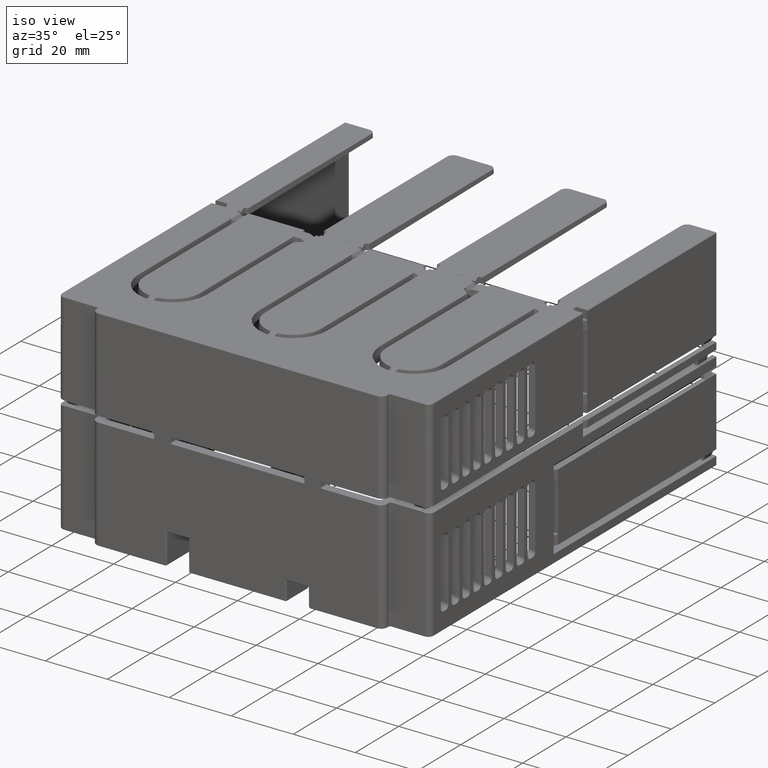
[diagram: clean part render]
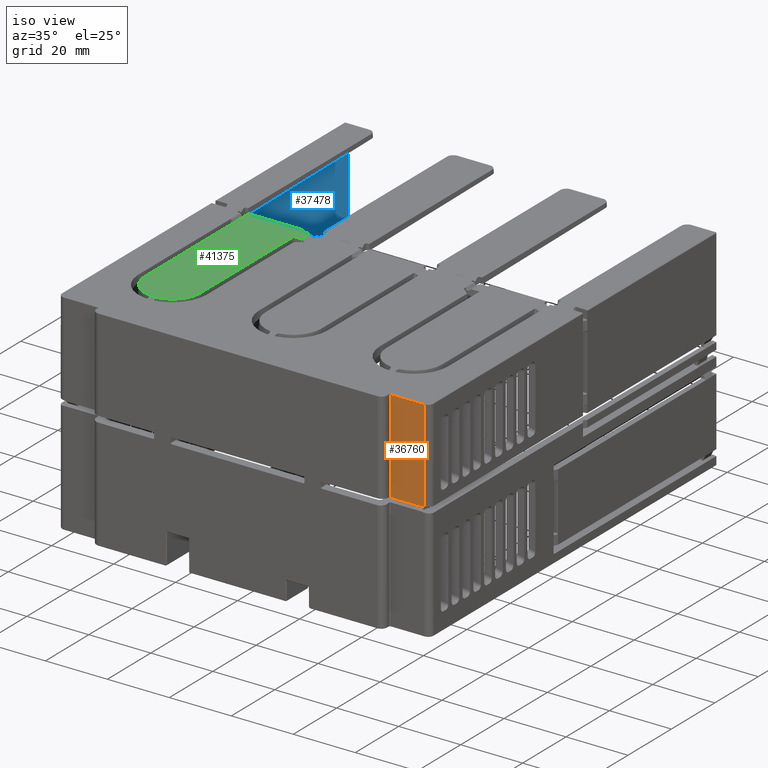
[diagram: same view with three faces highlighted in distinct colors, each labeled with its STEP entity id]
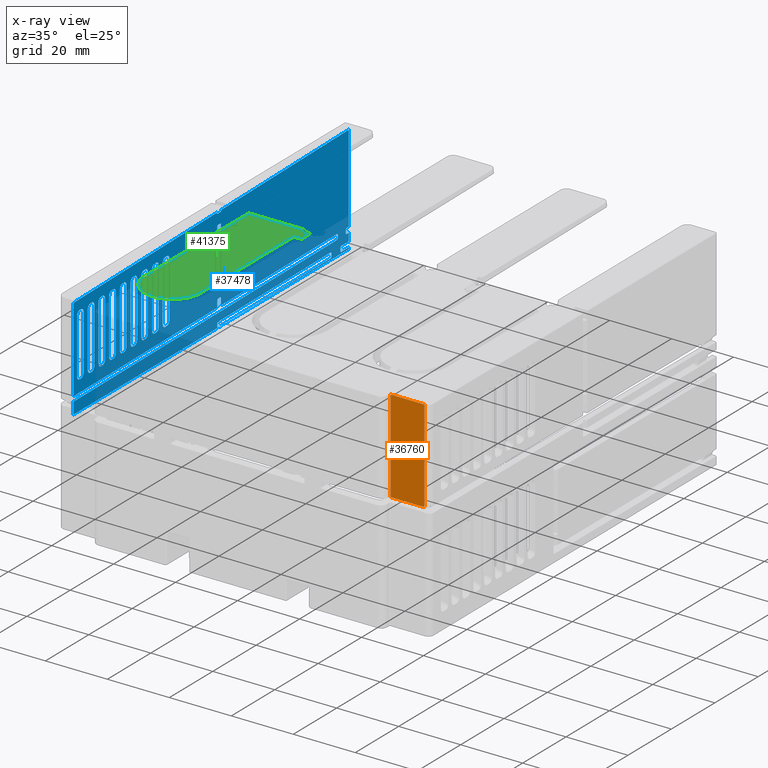
[diagram: x-ray of the same camera — body ghosted, the three highlighted faces saturated]
A machine part, iso view with three faces highlighted in distinct colors.
The next image is the same camera in x-ray (body ghosted, the three faces saturated) — at least one of them is partly hidden behind the body in this view.
Their STEP definitions:

[orange] entity #36760 — the highlighted planar face has unit normal (0, 1, 0).
#6711=DIRECTION('',(1.E0,4.854054799568E-8,-4.246777595653E-9));
#6712=VECTOR('',#6711,3.135366672430E0);
#6713=CARTESIAN_POINT('',(5.433906144210E1,2.999999847808E0,7.737534022737E0));
#6714=LINE('',#6713,#6712);
#6724=DIRECTION('',(0.E0,-2.506207251127E-14,-1.E0));
#6725=VECTOR('',#6724,2.985747959435E1);
#6726=CARTESIAN_POINT('',(5.82E1,3.000000000001E0,3.77E1));
#6727=LINE('',#6726,#6725);
#6728=DIRECTION('',(-9.961946980917E-1,-1.682870087684E-14,-8.715574274806E-2));
#6729=VECTOR('',#6728,5.541647852143E-1);
#6730=CARTESIAN_POINT('',(5.82E1,3.E0,7.842520405653E0));
#6731=LINE('',#6730,#6729);
#6732=DIRECTION('',(-1.E0,2.162112679876E-8,-1.891600499513E-9));
#6733=VECTOR('',#6732,7.039061442097E0);
#6734=CARTESIAN_POINT('',(5.433906144210E1,2.999999847808E0,7.737534022737E0));
#6735=LINE('',#6734,#6733);
#6736=DIRECTION('',(-1.E0,-6.237620002536E-14,0.E0));
#6737=VECTOR('',#6736,1.090000000007E1);
#6738=CARTESIAN_POINT('',(5.82E1,3.000000000001E0,3.77E1));
#6739=LINE('',#6738,#6737);
#6764=DIRECTION('',(2.170107285891E-12,0.E0,-1.E0));
#6765=VECTOR('',#6764,2.996246599058E1);
#6766=CARTESIAN_POINT('',(4.729999999993E1,3.E0,3.77E1));
#6767=LINE('',#6766,#6765);
#10963=CARTESIAN_POINT('',(5.82E1,3.E0,7.842520405653E0));
#12250=CARTESIAN_POINT('',(5.747442811453E1,3.E0,7.737534009419E0));
#12251=CARTESIAN_POINT('',(5.752786764614E1,3.E0,7.769891143067E0));
#12252=CARTESIAN_POINT('',(5.758570956955E1,3.E0,7.788776956874E0));
#12253=CARTESIAN_POINT('',(5.764794397910E1,3.E0,7.794221762191E0));
#25571=CARTESIAN_POINT('',(5.82E1,3.E0,3.77E1));
#25572=VERTEX_POINT('',#25571);
#25575=VERTEX_POINT('',#10963);
#25584=CARTESIAN_POINT('',(5.764794397910E1,3.E0,7.794221762193E0));
#25585=VERTEX_POINT('',#25584);
#25586=CARTESIAN_POINT('',(5.433906144210E1,2.999999847808E0,7.737534022737E0));
#25587=CARTESIAN_POINT('',(4.73E1,3.E0,7.737534009422E0));
#25588=VERTEX_POINT('',#25586);
#25589=VERTEX_POINT('',#25587);
#25847=CARTESIAN_POINT('',(4.73E1,3.E0,3.77E1));
#25848=VERTEX_POINT('',#25847);
#25864=CARTESIAN_POINT('',(5.747442811453E1,3.E0,7.737534009422E0));
#25865=VERTEX_POINT('',#25864);
#36741=CARTESIAN_POINT('',(5.274999999993E1,3.E0,2.271876700471E1));
#36742=DIRECTION('',(0.E0,1.E0,0.E0));
#36743=DIRECTION('',(-1.E0,0.E0,0.E0));
#36744=AXIS2_PLACEMENT_3D('',#36741,#36742,#36743);
#36745=PLANE('',#36744);
#36747=ORIENTED_EDGE('',*,*,#36746,.F.);
#36749=ORIENTED_EDGE('',*,*,#36748,.T.);
#36751=ORIENTED_EDGE('',*,*,#36750,.T.);
#36753=ORIENTED_EDGE('',*,*,#36752,.F.);
#36754=ORIENTED_EDGE('',*,*,#36730,.F.);
#36755=ORIENTED_EDGE('',*,*,#36693,.T.);
#36757=ORIENTED_EDGE('',*,*,#36756,.F.);
#36758=EDGE_LOOP('',(#36747,#36749,#36751,#36753,#36754,#36755,#36757));
#36759=FACE_OUTER_BOUND('',#36758,.F.);
#36760=ADVANCED_FACE('',(#36759),#36745,.F.);
#12254=B_SPLINE_CURVE_WITH_KNOTS('',3,(#12250,#12251,#12252,#12253),
.UNSPECIFIED.,.F.,.F.,(4,4),(0.E0,1.E0),.UNSPECIFIED.);
#36693=EDGE_CURVE('',#25588,#25589,#6735,.T.);
#36730=EDGE_CURVE('',#25588,#25865,#6714,.T.);
#36746=EDGE_CURVE('',#25572,#25848,#6739,.T.);
#36748=EDGE_CURVE('',#25572,#25575,#6727,.T.);
#36750=EDGE_CURVE('',#25575,#25585,#6731,.T.);
#36752=EDGE_CURVE('',#25865,#25585,#12254,.T.);
#36756=EDGE_CURVE('',#25848,#25589,#6767,.T.);

[blue] entity #37478 — the highlighted planar face has unit normal (1, 0.0087, 0).
#7025=DIRECTION('',(8.726532955062E-3,-9.999616316299E-1,7.634727053747E-4));
#7026=VECTOR('',#7025,1.229931953385E2);
#7027=CARTESIAN_POINT('',(-5.860813548821E1,1.294797497548E2,6.121772365955E0));
#7028=LINE('',#7027,#7026);
#7049=DIRECTION('',(8.726236570974E-3,-9.999238501849E-1,8.726203457183E-3));
#7050=VECTOR('',#7049,1.285184975331E2);
#7051=CARTESIAN_POINT('',(-5.865630998219E1,1.35E2,1.343670979256E0));
#7052=LINE('',#7051,#7050);
#7053=CARTESIAN_POINT('',(-5.753483131584E1,6.491273464500E0,3.453486939278E1));
#7054=CARTESIAN_POINT('',(-5.753485263620E1,6.493716535779E0,3.477949422086E1));
#7055=CARTESIAN_POINT('',(-5.753705949883E1,6.746597953536E0,3.503707853742E1));
#7056=CARTESIAN_POINT('',(-5.753919425126E1,6.991216352746E0,3.503921328980E1));
#7058=DIRECTION('',(-8.726203245940E-3,9.999238504775E-1,8.726203245433E-3));
#7059=VECTOR('',#7058,6.651384864506E1);
#7060=CARTESIAN_POINT('',(-5.753919425126E1,6.991216352746E0,3.503921328980E1));
#7061=LINE('',#7060,#7059);
#7062=DIRECTION('',(-8.726203245999E-3,9.999238504775E-1,8.726203245458E-3));
#7063=VECTOR('',#7062,5.950453124164E1);
#7064=CARTESIAN_POINT('',(-5.813706134866E1,7.55E1,3.563708038719E1));
#7065=LINE('',#7064,#7063);
#7066=DIRECTION('',(2.077304165306E-12,4.724572744708E-14,-1.E0));
#7067=VECTOR('',#7066,2.827388666468E1);
#7068=CARTESIAN_POINT('',(-5.865630998234E1,1.35E2,3.615632902083E1));
#7069=LINE('',#7068,#7067);
#7070=DIRECTION('',(0.E0,0.E0,-1.E0));
#7071=VECTOR('',#7070,2.485240401970E0);
#7072=CARTESIAN_POINT('',(-5.865630998228E1,1.35E2,6.117682758126E0));
#7073=LINE('',#7072,#7071);
#7074=DIRECTION('',(1.748543632751E-10,1.517762434071E-12,-1.E0));
#7075=VECTOR('',#7074,5.243296619991E-1);
#7076=CARTESIAN_POINT('',(-5.865630998228E1,1.35E2,1.868000641255E0));
#7077=LINE('',#7076,#7075);
#7700=DIRECTION('',(8.726533872655E-3,-9.999617206780E-1,6.362273205274E-4));
#7701=VECTOR('',#7700,3.481439765874E0);
#7702=CARTESIAN_POINT('',(-5.865630998228E1,1.35E2,1.868000641255E0));
#7703=LINE('',#7702,#7701);
#7715=CARTESIAN_POINT('',(-5.862592908077E1,1.315186935076E2,1.870215628280E0));
#7716=CARTESIAN_POINT('',(-5.862477039059E1,1.313859207637E2,1.870317000540E0));
#7717=CARTESIAN_POINT('',(-5.862332799280E1,1.312206383474E2,1.970710112426E0));
#7718=CARTESIAN_POINT('',(-5.862245427003E1,1.311205196349E2,2.136219675791E0));
#7719=CARTESIAN_POINT('',(-5.862245427003E1,1.311205196349E2,2.268997514097E0));
#7740=DIRECTION('',(-9.084854970623E-13,3.427132281601E-12,1.E0));
#7741=VECTOR('',#7740,9.620049718031E-1);
#7742=CARTESIAN_POINT('',(-5.862245427003E1,1.311205196349E2,2.268997514097E0));
#7743=LINE('',#7742,#7741);
#7756=CARTESIAN_POINT('',(-5.862245427003E1,1.311205196349E2,3.231002485900E0));
#7757=CARTESIAN_POINT('',(-5.862245427003E1,1.311205196349E2,3.286260935459E0));
#7758=CARTESIAN_POINT('',(-5.862264081074E1,1.311418950831E2,3.387382823058E0));
#7759=CARTESIAN_POINT('',(-5.862339050034E1,1.312278010022E2,3.518432985477E0));
#7760=CARTESIAN_POINT('',(-5.862452864116E1,1.313582190235E2,3.606599261658E0));
#7761=CARTESIAN_POINT('',(-5.862543137323E1,1.314616618720E2,3.630183825330E0));
#7762=CARTESIAN_POINT('',(-5.862592908078E1,1.315186935075E2,3.630227369099E0));
#7812=CARTESIAN_POINT('',(-5.864772960551E1,1.340167862088E2,6.118308329540E0));
#7813=CARTESIAN_POINT('',(-5.864657091532E1,1.338840134649E2,6.118409701794E0));
#7814=CARTESIAN_POINT('',(-5.864512851753E1,1.337187310486E2,6.218802813671E0));
#7815=CARTESIAN_POINT('',(-5.864425479476E1,1.336186123361E2,6.384312377024E0));
#7816=CARTESIAN_POINT('',(-5.864425479476E1,1.336186123361E2,6.517090215324E0));
#7822=DIRECTION('',(-3.384168936120E-13,-2.883900484693E-12,1.E0));
#7823=VECTOR('',#7822,9.658195693517E-1);
#7824=CARTESIAN_POINT('',(-5.864425479476E1,1.336186123361E2,6.517090215324E0));
#7825=LINE('',#7824,#7823);
#7834=CARTESIAN_POINT('',(-5.864425479476E1,1.336186123361E2,7.482909784676E0));
#7835=CARTESIAN_POINT('',(-5.864425479476E1,1.336186123361E2,7.538168234237E0));
#7836=CARTESIAN_POINT('',(-5.864444133026E1,1.336399871875E2,7.639301474349E0));
#7837=CARTESIAN_POINT('',(-5.864519104330E1,1.337258957921E2,7.770300550459E0));
#7838=CARTESIAN_POINT('',(-5.864632909819E1,1.338563039663E2,7.858654143128E0));
#7839=CARTESIAN_POINT('',(-5.864723204379E1,1.339597712835E2,7.881773253730E0));
#7840=CARTESIAN_POINT('',(-5.864772960551E1,1.340167862088E2,7.881816784739E0));
#7846=DIRECTION('',(-8.726533733377E-3,9.999617206792E-1,6.362273157049E-4));
#7847=VECTOR('',#7846,9.832514294081E-1);
#7848=CARTESIAN_POINT('',(-5.864772960551E1,1.340167862088E2,7.881816784739E0));
#7849=LINE('',#7848,#7847);
#8362=DIRECTION('',(1.105678945096E-6,4.175940991798E-6,-9.999999999907E-1));
#8363=VECTOR('',#8362,3.750524776837E0);
#8364=CARTESIAN_POINT('',(-5.753483131584E1,6.491273464754E0,6.215674313543E0));
#8365=LINE('',#8364,#8363);
#8846=DIRECTION('',(1.301528463663E-14,5.866838763502E-14,-1.E0));
#8847=VECTOR('',#8846,2.675054370632E1);
#8848=CARTESIAN_POINT('',(-5.753483131584E1,6.491273464500E0,3.453486939278E1));
#8849=LINE('',#8848,#8847);
#8902=DIRECTION('',(-1.246831404897E-9,-5.303972795477E-11,1.E0));
#8903=VECTOR('',#8902,5.358569986377E-2);
#8904=CARTESIAN_POINT('',(-5.811960761314E1,7.35E1,3.556604095185E1));
#8905=LINE('',#8904,#8903);
#8918=DIRECTION('',(-8.726532955094E-3,9.999616316299E-1,7.634727054582E-4));
#8919=VECTOR('',#8918,6.677750231337E1);
#8920=CARTESIAN_POINT('',(-5.753483131584E1,6.491273464502E0,7.784325686457E0));
#8921=LINE('',#8920,#8919);
#8940=CARTESIAN_POINT('',(-5.811756739043E1,7.326621363395E1,7.835308486812E0));
#8941=CARTESIAN_POINT('',(-5.811872608061E1,7.339898637778E1,7.835409859070E0));
#8942=CARTESIAN_POINT('',(-5.812016847841E1,7.356426879409E1,7.935802970948E0));
#8943=CARTESIAN_POINT('',(-5.812104220118E1,7.366438750663E1,8.101312534300E0));
#8944=CARTESIAN_POINT('',(-5.812104220118E1,7.366438750663E1,8.234090372596E0));
#8950=DIRECTION('',(-3.003978154371E-13,2.761991025269E-12,1.E0));
#8951=VECTOR('',#8950,1.703044241526E0);
#8952=CARTESIAN_POINT('',(-5.812104220118E1,7.366438750664E1,8.234090372596E0));
#8953=LINE('',#8952,#8951);
#8962=CARTESIAN_POINT('',(-5.812104220118E1,7.366438750664E1,9.937134614123E0));
#8963=CARTESIAN_POINT('',(-5.812104220118E1,7.366438750664E1,9.992393063681E0));
#8964=CARTESIAN_POINT('',(-5.812122873648E1,7.368576233554E1,1.009352679308E1));
#8965=CARTESIAN_POINT('',(-5.812197845040E1,7.377167104156E1,1.022452366735E1));
#8966=CARTESIAN_POINT('',(-5.812311650205E1,7.390207884402E1,1.031288533340E1));
#8967=CARTESIAN_POINT('',(-5.812401945571E1,7.400554708474E1,1.033598438286E1));
#8968=CARTESIAN_POINT('',(-5.812451701193E1,7.406256137933E1,1.033602791339E1));
#8974=DIRECTION('',(-8.726533732377E-3,9.999617206793E-1,6.362273109234E-4));
#8975=VECTOR('',#8974,8.755792388328E-1);
#8976=CARTESIAN_POINT('',(-5.812451701193E1,7.406256137933E1,1.033602791339E1));
#8977=LINE('',#8976,#8975);
#8990=CARTESIAN_POINT('',(-5.813215778368E1,7.493810710158E1,1.033658498081E1));
#8991=CARTESIAN_POINT('',(-5.813331735888E1,7.507098125835E1,1.033668643049E1));
#8992=CARTESIAN_POINT('',(-5.813476218635E1,7.523654208772E1,1.023662150816E1));
#8993=CARTESIAN_POINT('',(-5.813563790453E1,7.533688945193E1,1.007129082783E1));
#8994=CARTESIAN_POINT('',(-5.813563790453E1,7.533688945193E1,9.938411572703E0));
#9019=DIRECTION('',(3.254309667236E-13,1.476955925899E-12,-1.E0));
#9020=VECTOR('',#9019,1.703044241526E0);
#9021=CARTESIAN_POINT('',(-5.813563790454E1,7.533688945194E1,9.938411572703E0));
#9022=LINE('',#9021,#9020);
#9023=CARTESIAN_POINT('',(-5.813563790453E1,7.533688945194E1,8.235367331176E0));
#9024=CARTESIAN_POINT('',(-5.813563790453E1,7.533688945194E1,8.102488076041E0));
#9025=CARTESIAN_POINT('',(-5.813651362271E1,7.543723681616E1,7.937157395712E0));
#9026=CARTESIAN_POINT('',(-5.813795845018E1,7.560279764553E1,7.837092473377E0));
#9027=CARTESIAN_POINT('',(-5.813911802538E1,7.573567180230E1,7.837193923062E0));
#9039=DIRECTION('',(-8.726532954959E-3,9.999616316299E-1,7.634727054331E-4));
#9040=VECTOR('',#9039,5.374614010430E1);
#9041=CARTESIAN_POINT('',(-5.813911802539E1,7.573567180230E1,7.837193923062E0));
#9042=LINE('',#9041,#9040);
#9051=CARTESIAN_POINT('',(-5.860813548821E1,1.294797497548E2,7.878227634054E0));
#9052=CARTESIAN_POINT('',(-5.860929506341E1,1.296126239116E2,7.878329083757E0));
#9053=CARTESIAN_POINT('',(-5.861073989088E1,1.297781847410E2,7.778264161424E0));
#9054=CARTESIAN_POINT('',(-5.861161560906E1,1.298785321052E2,7.612933481093E0));
#9055=CARTESIAN_POINT('',(-5.861161560906E1,1.298785321052E2,7.480054225940E0));
#9061=DIRECTION('',(-1.317315837786E-12,-3.700325387039E-11,-1.E0));
#9062=VECTOR('',#9061,9.601084518796E-1);
#9063=CARTESIAN_POINT('',(-5.861161560906E1,1.298785321052E2,7.480054225940E0));
#9064=LINE('',#9063,#9062);
#9073=CARTESIAN_POINT('',(-5.861161560906E1,1.298785321051E2,6.519945774060E0));
#9074=CARTESIAN_POINT('',(-5.861161560906E1,1.298785321051E2,6.387066518928E0));
#9075=CARTESIAN_POINT('',(-5.861073989088E1,1.297781847409E2,6.221735838611E0));
#9076=CARTESIAN_POINT('',(-5.860929506341E1,1.296126239116E2,6.121670916285E0));
#9077=CARTESIAN_POINT('',(-5.860813548821E1,1.294797497548E2,6.121772365976E0));
#9138=DIRECTION('',(-8.809517252803E-10,-7.245796117677E-12,-1.E0));
#9139=VECTOR('',#9138,7.256643934263E-2);
#9140=CARTESIAN_POINT('',(-5.813706134866E1,7.55E1,3.563708038719E1));
#9141=LINE('',#9140,#9139);
#15714=CARTESIAN_POINT('',(-5.813706134873E1,7.55E1,3.556451394785E1));
#15715=CARTESIAN_POINT('',(-5.813706134873E1,7.55E1,3.550892877687E1));
#15716=CARTESIAN_POINT('',(-5.813687361510E1,7.547848785833E1,
3.540716687069E1));
#15717=CARTESIAN_POINT('',(-5.813611832954E1,7.539194070516E1,
3.527523178689E1));
#15718=CARTESIAN_POINT('',(-5.813497448564E1,7.526086917660E1,
3.518614660967E1));
#15719=CARTESIAN_POINT('',(-5.813406899817E1,7.515711058920E1,
3.516340050998E1));
#15720=CARTESIAN_POINT('',(-5.813357060161E1,7.51E1,3.516344411403E1));
#15737=DIRECTION('',(8.726533732718E-3,-9.999617206793E-1,6.362273121354E-4));
#15738=VECTOR('',#15737,1.200045936943E0);
#15739=CARTESIAN_POINT('',(-5.813357060161E1,7.51E1,3.516344411403E1));
#15740=LINE('',#15739,#15738);
#15753=CARTESIAN_POINT('',(-5.812309836026E1,7.39E1,3.516420761603E1));
#15754=CARTESIAN_POINT('',(-5.812193257794E1,7.376641457849E1,
3.516430960877E1));
#15755=CARTESIAN_POINT('',(-5.812048723524E1,7.360079470850E1,
3.526599092938E1));
#15756=CARTESIAN_POINT('',(-5.811960761314E1,7.35E1,3.543245040469E1));
#15757=CARTESIAN_POINT('',(-5.811960761314E1,7.35E1,3.556604095185E1));
#15775=CARTESIAN_POINT('',(-5.812104220118E1,7.366438750664E1,
3.143713461412E1));
#15776=CARTESIAN_POINT('',(-5.812104220118E1,7.366438750664E1,
3.149239306368E1));
#15777=CARTESIAN_POINT('',(-5.812122873648E1,7.368576233554E1,
3.159352679308E1));
#15778=CARTESIAN_POINT('',(-5.812197845040E1,7.377167104156E1,
3.172452366735E1));
#15779=CARTESIAN_POINT('',(-5.812311650205E1,7.390207884402E1,
3.181288533340E1));
#15780=CARTESIAN_POINT('',(-5.812401945571E1,7.400554708474E1,
3.183598438286E1));
#15781=CARTESIAN_POINT('',(-5.812451701193E1,7.406256137933E1,
3.183602791339E1));
#15798=DIRECTION('',(-1.063302915770E-14,-4.416796727044E-14,1.E0));
#15799=VECTOR('',#15798,1.737426922825E1);
#15800=CARTESIAN_POINT('',(-5.812104220118E1,7.366438750664E1,
1.406286538588E1));
#15801=LINE('',#15800,#15799);
#15810=CARTESIAN_POINT('',(-5.812451701193E1,7.406256137933E1,
1.366397208661E1));
#15811=CARTESIAN_POINT('',(-5.812403546327E1,7.400738136811E1,
1.366401421666E1));
#15812=CARTESIAN_POINT('',(-5.812315420058E1,7.390639866763E1,
1.368561961546E1));
#15813=CARTESIAN_POINT('',(-5.812201284895E1,7.377561272499E1,
1.377153773589E1));
#15814=CARTESIAN_POINT('',(-5.812124196107E1,7.368727772273E1,
1.390209593339E1));
#15815=CARTESIAN_POINT('',(-5.812104220118E1,7.366438750664E1,
1.400574845312E1));
#15816=CARTESIAN_POINT('',(-5.812104220118E1,7.366438750664E1,
1.406286538588E1));
#15833=DIRECTION('',(8.726534366549E-3,-9.999617935378E-1,5.089818862869E-4));
#15834=VECTOR('',#15833,8.755791750352E-1);
#15835=CARTESIAN_POINT('',(-5.813215778369E1,7.493810710158E1,
1.366352643267E1));
#15836=LINE('',#15835,#15834);
#15849=CARTESIAN_POINT('',(-5.813563790454E1,7.533688945194E1,
1.406158842730E1));
#15850=CARTESIAN_POINT('',(-5.813563790454E1,7.533688945194E1,
1.400635818279E1));
#15851=CARTESIAN_POINT('',(-5.813545116090E1,7.531549075127E1,
1.390528423245E1));
#15852=CARTESIAN_POINT('',(-5.813470093578E1,7.522952346657E1,
1.377447645903E1));
#15853=CARTESIAN_POINT('',(-5.813356129651E1,7.509893374225E1,
1.368613421297E1));
#15854=CARTESIAN_POINT('',(-5.813265635524E1,7.499523774224E1,
1.366348281331E1));
#15855=CARTESIAN_POINT('',(-5.813215778369E1,7.493810710158E1,
1.366352643267E1));
#15880=DIRECTION('',(2.330744555516E-14,4.334367068153E-14,-1.E0));
#15881=VECTOR('',#15880,1.737682314541E1);
#15882=CARTESIAN_POINT('',(-5.813563790454E1,7.533688945194E1,
3.143841157270E1));
#15883=LINE('',#15882,#15881);
#15884=CARTESIAN_POINT('',(-5.813215778368E1,7.493810710158E1,
3.183658498081E1));
#15885=CARTESIAN_POINT('',(-5.813331735888E1,7.507098125835E1,
3.183668643049E1));
#15886=CARTESIAN_POINT('',(-5.813476218635E1,7.523654208772E1,
3.173662150816E1));
#15887=CARTESIAN_POINT('',(-5.813563790453E1,7.533688945193E1,
3.157129082783E1));
#15888=CARTESIAN_POINT('',(-5.813563790453E1,7.533688945193E1,
3.143841157270E1));
#15905=DIRECTION('',(-8.726533732271E-3,9.999617206793E-1,6.362273117552E-4));
#15906=VECTOR('',#15905,8.755792388328E-1);
#15907=CARTESIAN_POINT('',(-5.812451701193E1,7.406256137933E1,
3.183602791339E1));
#15908=LINE('',#15907,#15906);
#15975=DIRECTION('',(1.287712916982E-14,0.E0,1.E0));
#15976=VECTOR('',#15975,1.765717128754E1);
#15977=CARTESIAN_POINT('',(-5.754986845318E1,8.214358734495E0,
1.292141435623E1));
#15978=LINE('',#15977,#15976);
#15985=CARTESIAN_POINT('',(-5.754986845318E1,8.214358734495E0,
3.057858564377E1));
#15986=CARTESIAN_POINT('',(-5.754986845318E1,8.214358734494E0,
3.071681228293E1));
#15987=CARTESIAN_POINT('',(-5.755021503832E1,8.254073457994E0,
3.097714644234E1));
#15988=CARTESIAN_POINT('',(-5.755180198185E1,8.435919174744E0,
3.134306995804E1));
#15989=CARTESIAN_POINT('',(-5.755406973334E1,8.695777756526E0,
3.161319905193E1));
#15990=CARTESIAN_POINT('',(-5.755717485820E1,9.051589822963E0,
3.180387881801E1));
#15991=CARTESIAN_POINT('',(-5.755938704440E1,9.305081252749E0,
3.184628162771E1));
#15992=CARTESIAN_POINT('',(-5.756056353016E1,9.439893167992E0,
3.184659686612E1));
#15998=DIRECTION('',(-8.726524898916E-3,9.999607081131E-1,1.558843529183E-3));
#15999=VECTOR('',#15998,6.207119491529E-1);
#16000=CARTESIAN_POINT('',(-5.756056353016E1,9.439893167992E0,
3.184659686612E1));
#16001=LINE('',#16000,#15999);
#16016=CARTESIAN_POINT('',(-5.756598018844E1,1.006058072820E1,
3.184756445893E1));
#16017=CARTESIAN_POINT('',(-5.756711606440E1,1.019073922176E1,
3.184786881597E1));
#16018=CARTESIAN_POINT('',(-5.756926676028E1,1.043718455991E1,
3.181022760164E1));
#16019=CARTESIAN_POINT('',(-5.757232999962E1,1.078819702068E1,
3.163037234007E1));
#16020=CARTESIAN_POINT('',(-5.757462924319E1,1.105166423779E1,
3.136921081994E1));
#16021=CARTESIAN_POINT('',(-5.757630172667E1,1.124331186241E1,
3.100313319784E1));
#16022=CARTESIAN_POINT('',(-5.757669160931E1,1.128798798759E1,
3.073182983862E1));
#16023=CARTESIAN_POINT('',(-5.757669160931E1,1.128798798759E1,
3.058577288680E1));
#16029=DIRECTION('',(4.101246148813E-14,0.E0,-1.E0));
#16030=VECTOR('',#16029,1.767154577359E1);
#16031=CARTESIAN_POINT('',(-5.757669160931E1,1.128798798759E1,
3.058577288680E1));
#16032=LINE('',#16031,#16030);
#16047=CARTESIAN_POINT('',(-5.757669160931E1,1.128798798759E1,
1.291422711320E1));
#16048=CARTESIAN_POINT('',(-5.757669160931E1,1.128798798759E1,
1.277595869552E1));
#16049=CARTESIAN_POINT('',(-5.757634399589E1,1.124815543428E1,
1.251575914797E1));
#16050=CARTESIAN_POINT('',(-5.757475637898E1,1.106623255604E1,
1.215099670239E1));
#16051=CARTESIAN_POINT('',(-5.757248529453E1,1.080599205484E1,
1.188206714900E1));
#16052=CARTESIAN_POINT('',(-5.756937813840E1,1.044994722863E1,
1.169278704044E1));
#16053=CARTESIAN_POINT('',(-5.756716009696E1,1.019578485293E1,
1.165211938554E1));
#16054=CARTESIAN_POINT('',(-5.756598018844E1,1.006058072820E1,
1.165243554107E1));
#16068=DIRECTION('',(8.726518933462E-3,-9.999600247051E-1,1.948553084331E-3));
#16069=VECTOR('',#16068,6.207123733693E-1);
#16070=CARTESIAN_POINT('',(-5.756598018844E1,1.006058072820E1,
1.165243554107E1));
#16071=LINE('',#16070,#16069);
#16078=CARTESIAN_POINT('',(-5.756056353016E1,9.439893167994E0,
1.165364503209E1));
#16079=CARTESIAN_POINT('',(-5.755694131801E1,9.024828768167E0,
1.165461560091E1));
#16080=CARTESIAN_POINT('',(-5.755249785104E1,8.515657885120E0,
1.197677723991E1));
#16081=CARTESIAN_POINT('',(-5.754986845318E1,8.214358734497E0,
1.250633301670E1));
#16082=CARTESIAN_POINT('',(-5.754986845318E1,8.214358734495E0,
1.292141435623E1));
#16096=DIRECTION('',(3.898221264014E-14,-1.494987948673E-13,1.E0));
#16097=VECTOR('',#16096,1.768053701953E1);
#16098=CARTESIAN_POINT('',(-5.759346950265E1,1.321054413694E1,
1.290973149023E1));
#16099=LINE('',#16098,#16097);
#16106=CARTESIAN_POINT('',(-5.759346950265E1,1.321054413694E1,
3.059026850977E1));
#16107=CARTESIAN_POINT('',(-5.759346950265E1,1.321054413694E1,
3.072849514893E1));
#16108=CARTESIAN_POINT('',(-5.759381608778E1,1.325025885989E1,
3.098882933680E1));
#16109=CARTESIAN_POINT('',(-5.759540303133E1,1.343210457911E1,
3.135475272438E1));
#16110=CARTESIAN_POINT('',(-5.759767078274E1,1.369196315182E1,
3.162488228807E1));
#16111=CARTESIAN_POINT('',(-5.760077590790E1,1.404777525208E1,
3.181556030306E1));
#16112=CARTESIAN_POINT('',(-5.760298809336E1,1.430126659774E1,
3.185796746914E1));
#16113=CARTESIAN_POINT('',(-5.760416457962E1,1.443607857045E1,
3.185828270768E1));
#16119=DIRECTION('',(-8.726524901778E-3,9.999607081131E-1,1.558843530080E-3));
#16120=VECTOR('',#16119,6.283472736051E-1);
#16121=CARTESIAN_POINT('',(-5.760416457962E1,1.443607857045E1,
3.185828270768E1));
#16122=LINE('',#16121,#16120);
#16137=CARTESIAN_POINT('',(-5.760964786775E1,1.506440115510E1,
3.185926220276E1));
#16138=CARTESIAN_POINT('',(-5.761078374375E1,1.519455965208E1,
3.185956655982E1));
#16139=CARTESIAN_POINT('',(-5.761293443958E1,1.544100498522E1,
3.182192970204E1));
#16140=CARTESIAN_POINT('',(-5.761599767894E1,1.579201744801E1,
3.164207268931E1));
#16141=CARTESIAN_POINT('',(-5.761829692250E1,1.605548466458E1,
3.138091163900E1));
#16142=CARTESIAN_POINT('',(-5.761996940599E1,1.624713228934E1,
3.101483388877E1));
#16143=CARTESIAN_POINT('',(-5.762035928863E1,1.629180841449E1,
3.074353055802E1));
#16144=CARTESIAN_POINT('',(-5.762035928863E1,1.629180841449E1,
3.059747360621E1));
#16150=DIRECTION('',(4.457218364237E-14,4.999312489617E-14,-1.E0));
#16151=VECTOR('',#16150,1.769494721241E1);
#16152=CARTESIAN_POINT('',(-5.762035928863E1,1.629180841449E1,
3.059747360621E1));
#16153=LINE('',#16152,#16151);
#16168=CARTESIAN_POINT('',(-5.762035928863E1,1.629180841449E1,
1.290252639379E1));
#16169=CARTESIAN_POINT('',(-5.762035928863E1,1.629180841449E1,
1.276425797611E1));
#16170=CARTESIAN_POINT('',(-5.762001167520E1,1.625197586105E1,
1.250405845703E1));
#16171=CARTESIAN_POINT('',(-5.761842405830E1,1.607005298341E1,
1.213929588332E1));
#16172=CARTESIAN_POINT('',(-5.761615297383E1,1.580981248E1,1.187036679976E1));
#16173=CARTESIAN_POINT('',(-5.761304581778E1,1.545376766206E1,1.168108494E1));
#16174=CARTESIAN_POINT('',(-5.761082777615E1,1.519960526578E1,
1.164042164173E1));
#16175=CARTESIAN_POINT('',(-5.760964786775E1,1.506440115510E1,
1.164073779723E1));
#16189=DIRECTION('',(8.726518935715E-3,-9.999600247051E-1,1.948553088685E-3));
#16190=VECTOR('',#16189,6.283477030427E-1);
#16191=CARTESIAN_POINT('',(-5.760964786775E1,1.506440115510E1,
1.164073779723E1));
#16192=LINE('',#16191,#16190);
#16199=CARTESIAN_POINT('',(-5.760416457962E1,1.443607857044E1,
1.164196216610E1));
#16200=CARTESIAN_POINT('',(-5.760054236748E1,1.402101417062E1,
1.164293273491E1));
#16201=CARTESIAN_POINT('',(-5.759609890050E1,1.351184328757E1,
1.196509437392E1));
#16202=CARTESIAN_POINT('',(-5.759346950265E1,1.321054413694E1,
1.249465015070E1));
#16203=CARTESIAN_POINT('',(-5.759346950265E1,1.321054413694E1,
1.290973149023E1));
#16217=DIRECTION('',(2.367953665259E-14,-6.261030030176E-14,1.E0));
#16218=VECTOR('',#16217,1.770390275152E1);
#16219=CARTESIAN_POINT('',(-5.763707055212E1,1.820672953940E1,
1.289804862424E1));
#16220=LINE('',#16219,#16218);
#16227=CARTESIAN_POINT('',(-5.763707055212E1,1.820672953940E1,
3.060195137576E1));
#16228=CARTESIAN_POINT('',(-5.763707055212E1,1.820672953940E1,
3.074017801492E1));
#16229=CARTESIAN_POINT('',(-5.763741713724E1,1.824644426178E1,
3.100051223127E1));
#16230=CARTESIAN_POINT('',(-5.763900408082E1,1.842828998349E1,
3.136643549072E1));
#16231=CARTESIAN_POINT('',(-5.764127183215E1,1.868814854710E1,
3.163656552421E1));
#16232=CARTESIAN_POINT('',(-5.764437695760E1,1.904396068127E1,
3.182724178812E1));
#16233=CARTESIAN_POINT('',(-5.764658914232E1,1.929745194258E1,
3.186965331057E1));
#16234=CARTESIAN_POINT('',(-5.764776562909E1,1.943226397290E1,
3.186996854925E1));
#16240=DIRECTION('',(-8.726524891686E-3,9.999607081132E-1,1.558843528032E-3));
#16241=VECTOR('',#16240,6.359825980691E-1);
#16242=CARTESIAN_POINT('',(-5.764776562909E1,1.943226397290E1,
3.186996854925E1));
#16243=LINE('',#16242,#16241);
#16258=CARTESIAN_POINT('',(-5.765331554706E1,2.006822158201E1,
3.187095994660E1));
#16259=CARTESIAN_POINT('',(-5.765445142309E1,2.019838008256E1,
3.187126430367E1));
#16260=CARTESIAN_POINT('',(-5.765660211888E1,2.044482541047E1,
3.183363180246E1));
#16261=CARTESIAN_POINT('',(-5.765966535826E1,2.079583787536E1,
3.165377303856E1));
#16262=CARTESIAN_POINT('',(-5.766196460182E1,2.105930509136E1,
3.139261245808E1));
#16263=CARTESIAN_POINT('',(-5.766363708530E1,2.125095271629E1,
3.102653457971E1));
#16264=CARTESIAN_POINT('',(-5.766402696794E1,2.129562884140E1,
3.075523127743E1));
#16265=CARTESIAN_POINT('',(-5.766402696794E1,2.129562884140E1,
3.060917432561E1));
#16271=DIRECTION('',(2.406125140938E-14,2.025155326956E-13,-1.E0));
#16272=VECTOR('',#16271,1.771834865122E1);
#16273=CARTESIAN_POINT('',(-5.766402696794E1,2.129562884140E1,
3.060917432561E1));
#16274=LINE('',#16273,#16272);
#16289=CARTESIAN_POINT('',(-5.766402696794E1,2.129562884140E1,
1.289082567439E1));
#16290=CARTESIAN_POINT('',(-5.766402696794E1,2.129562884140E1,
1.275255725670E1));
#16291=CARTESIAN_POINT('',(-5.766367935451E1,2.125579628782E1,
1.249235776610E1));
#16292=CARTESIAN_POINT('',(-5.766209173762E1,2.107387341078E1,
1.212759506425E1));
#16293=CARTESIAN_POINT('',(-5.765982065313E1,2.081363290517E1,
1.185866645052E1));
#16294=CARTESIAN_POINT('',(-5.765671349715E1,2.045758809541E1,
1.166938283957E1));
#16295=CARTESIAN_POINT('',(-5.765449545534E1,2.020342567878E1,
1.162872389793E1));
#16296=CARTESIAN_POINT('',(-5.765331554706E1,2.006822158201E1,
1.162904005340E1));
#16310=DIRECTION('',(8.726518925454E-3,-9.999600247051E-1,1.948553087095E-3));
#16311=VECTOR('',#16310,6.359830327202E-1);
#16312=CARTESIAN_POINT('',(-5.765331554706E1,2.006822158201E1,
1.162904005340E1));
#16313=LINE('',#16312,#16311);
#16320=CARTESIAN_POINT('',(-5.764776562909E1,1.943226397290E1,
1.163027930011E1));
#16321=CARTESIAN_POINT('',(-5.764414341694E1,1.901719957308E1,
1.163124986892E1));
#16322=CARTESIAN_POINT('',(-5.763969994997E1,1.850802869003E1,
1.195341150793E1));
#16323=CARTESIAN_POINT('',(-5.763707055211E1,1.820672953940E1,
1.248296728471E1));
#16324=CARTESIAN_POINT('',(-5.763707055211E1,1.820672953940E1,
1.289804862424E1));
#16330=DIRECTION('',(-8.726518927395E-3,9.999600247051E-1,1.948553079589E-3));
#16331=VECTOR('',#16330,6.436183623952E-1);
#16332=CARTESIAN_POINT('',(-5.769136667856E1,2.442844937535E1,
3.188165439081E1));
#16333=LINE('',#16332,#16331);
#16348=CARTESIAN_POINT('',(-5.768067160158E1,2.320291494185E1,
3.061363424175E1));
#16349=CARTESIAN_POINT('',(-5.768067160158E1,2.320291494185E1,
3.075186088092E1));
#16350=CARTESIAN_POINT('',(-5.768101818670E1,2.324262966369E1,
3.101219512574E1));
#16351=CARTESIAN_POINT('',(-5.768260513030E1,2.342447538788E1,
3.137811825706E1));
#16352=CARTESIAN_POINT('',(-5.768487288155E1,2.368433394238E1,
3.164824876036E1));
#16353=CARTESIAN_POINT('',(-5.768797800729E1,2.404014611053E1,
3.183892327317E1));
#16354=CARTESIAN_POINT('',(-5.769019019129E1,2.429363728727E1,
3.188133915200E1));
#16355=CARTESIAN_POINT('',(-5.769136667856E1,2.442844937535E1,
3.188165439081E1));
#16369=DIRECTION('',(2.364832543088E-14,-1.955997086487E-13,1.E0));
#16370=VECTOR('',#16369,1.772726848350E1);
#16371=CARTESIAN_POINT('',(-5.768067160158E1,2.320291494185E1,
1.288636575825E1));
#16372=LINE('',#16371,#16370);
#16379=CARTESIAN_POINT('',(-5.769136667855E1,2.442844937535E1,
1.161859643411E1));
#16380=CARTESIAN_POINT('',(-5.768774446641E1,2.401338497553E1,
1.161956700293E1));
#16381=CARTESIAN_POINT('',(-5.768330099943E1,2.350421409248E1,
1.194172864193E1));
#16382=CARTESIAN_POINT('',(-5.768067160158E1,2.320291494185E1,
1.247128441872E1));
#16383=CARTESIAN_POINT('',(-5.768067160158E1,2.320291494185E1,
1.288636575825E1));
#16397=DIRECTION('',(8.726518925500E-3,-9.999600247051E-1,1.948553085099E-3));
#16398=VECTOR('',#16397,6.436183623950E-1);
#16399=CARTESIAN_POINT('',(-5.769698322638E1,2.507204200891E1,
1.161734230956E1));
#16400=LINE('',#16399,#16398);
#16407=CARTESIAN_POINT('',(-5.770769464726E1,2.629944926830E1,
1.287912495498E1));
#16408=CARTESIAN_POINT('',(-5.770769464726E1,2.629944926830E1,
1.274085653729E1));
#16409=CARTESIAN_POINT('',(-5.770734703382E1,2.625961671459E1,
1.248065707517E1));
#16410=CARTESIAN_POINT('',(-5.770575941693E1,2.607769383815E1,
1.211589424518E1));
#16411=CARTESIAN_POINT('',(-5.770348833243E1,2.581745333036E1,
1.184696610128E1));
#16412=CARTESIAN_POINT('',(-5.770038117652E1,2.546140852869E1,
1.165768073914E1));
#16413=CARTESIAN_POINT('',(-5.769816313454E1,2.520724609193E1,
1.161702615412E1));
#16414=CARTESIAN_POINT('',(-5.769698322638E1,2.507204200891E1,
1.161734230956E1));
#16420=DIRECTION('',(2.563148215811E-14,9.011067946211E-14,-1.E0));
#16421=VECTOR('',#16420,1.774175009004E1);
#16422=CARTESIAN_POINT('',(-5.770769464726E1,2.629944926830E1,
3.062087504502E1));
#16423=LINE('',#16422,#16421);
#16438=CARTESIAN_POINT('',(-5.769698322638E1,2.507204200891E1,
3.188290851534E1));
#16439=CARTESIAN_POINT('',(-5.770060816250E1,2.548741854638E1,
3.188387981405E1));
#16440=CARTESIAN_POINT('',(-5.770505924407E1,2.599746197524E1,
3.156434974279E1));
#16441=CARTESIAN_POINT('',(-5.770769464725E1,2.629944926830E1,
3.103626853494E1));
#16442=CARTESIAN_POINT('',(-5.770769464725E1,2.629944926830E1,
3.062087504502E1));
#16448=DIRECTION('',(-8.726518930660E-3,9.999600247051E-1,1.948553079953E-3));
#16449=VECTOR('',#16448,6.512536920625E-1);
#16450=CARTESIAN_POINT('',(-5.773496772802E1,2.942463477781E1,
3.189334023237E1));
#16451=LINE('',#16450,#16449);
#16466=CARTESIAN_POINT('',(-5.772427265105E1,2.819910034431E1,
3.062531710775E1));
#16467=CARTESIAN_POINT('',(-5.772427265105E1,2.819910034431E1,
3.076354374691E1));
#16468=CARTESIAN_POINT('',(-5.772461923616E1,2.823881506558E1,
3.102387802020E1));
#16469=CARTESIAN_POINT('',(-5.772620617978E1,2.842066079227E1,
3.138980102339E1));
#16470=CARTESIAN_POINT('',(-5.772847393095E1,2.868051933762E1,
3.165993199650E1));
#16471=CARTESIAN_POINT('',(-5.773157905700E1,2.903633153985E1,
3.185060475822E1));
#16472=CARTESIAN_POINT('',(-5.773379124024E1,2.928982263182E1,
3.189302499342E1));
#16473=CARTESIAN_POINT('',(-5.773496772802E1,2.942463477781E1,
3.189334023237E1));
#16487=DIRECTION('',(4.243089518730E-14,-1.046762178441E-13,1.E0));
#16488=VECTOR('',#16487,1.775063421549E1);
#16489=CARTESIAN_POINT('',(-5.772427265105E1,2.819910034431E1,
1.287468289225E1));
#16490=LINE('',#16489,#16488);
#16497=CARTESIAN_POINT('',(-5.773496772802E1,2.942463477781E1,
1.160691356812E1));
#16498=CARTESIAN_POINT('',(-5.773134551588E1,2.900957037799E1,
1.160788413694E1));
#16499=CARTESIAN_POINT('',(-5.772690204890E1,2.850039949494E1,
1.193004577594E1));
#16500=CARTESIAN_POINT('',(-5.772427265104E1,2.819910034431E1,
1.245960155272E1));
#16501=CARTESIAN_POINT('',(-5.772427265104E1,2.819910034431E1,
1.287468289225E1));
#16515=DIRECTION('',(8.726518927517E-3,-9.999600247051E-1,1.948553089354E-3));
#16516=VECTOR('',#16515,6.512536920617E-1);
#16517=CARTESIAN_POINT('',(-5.774065090569E1,3.007586243581E1,
1.160564456572E1));
#16518=LINE('',#16517,#16516);
#16525=CARTESIAN_POINT('',(-5.775136232657E1,3.130326969520E1,
1.286742423557E1));
#16526=CARTESIAN_POINT('',(-5.775136232657E1,3.130326969520E1,
1.272915581788E1));
#16527=CARTESIAN_POINT('',(-5.775101471314E1,3.126343714137E1,
1.246895638423E1));
#16528=CARTESIAN_POINT('',(-5.774942709625E1,3.108151426551E1,
1.210419342611E1));
#16529=CARTESIAN_POINT('',(-5.774715601173E1,3.082127375557E1,
1.183526575205E1));
#16530=CARTESIAN_POINT('',(-5.774404885589E1,3.046522896192E1,
1.164597863871E1));
#16531=CARTESIAN_POINT('',(-5.774183081373E1,3.021106650523E1,
1.160532841031E1));
#16532=CARTESIAN_POINT('',(-5.774065090569E1,3.007586243581E1,
1.160564456572E1));
#16538=DIRECTION('',(4.359611460226E-14,1.455870249103E-13,-1.E0));
#16539=VECTOR('',#16538,1.776515152886E1);
#16540=CARTESIAN_POINT('',(-5.775136232657E1,3.130326969520E1,
3.063257576443E1));
#16541=LINE('',#16540,#16539);
#16556=CARTESIAN_POINT('',(-5.774065090569E1,3.007586243581E1,
3.189460923475E1));
#16557=CARTESIAN_POINT('',(-5.774427584182E1,3.049123897328E1,
3.189558053346E1));
#16558=CARTESIAN_POINT('',(-5.774872692339E1,3.100128240214E1,
3.157605046220E1));
#16559=CARTESIAN_POINT('',(-5.775136232657E1,3.130326969520E1,
3.104796925435E1));
#16560=CARTESIAN_POINT('',(-5.775136232657E1,3.130326969520E1,
3.063257576443E1));
#16574=DIRECTION('',(2.518521013006E-14,-5.037042026011E-14,1.E0));
#16575=VECTOR('',#16574,1.777399994748E1);
#16576=CARTESIAN_POINT('',(-5.776787370051E1,3.319528574676E1,
1.286300002626E1));
#16577=LINE('',#16576,#16575);
#16584=CARTESIAN_POINT('',(-5.776787370051E1,3.319528574676E1,
3.063699997374E1));
#16585=CARTESIAN_POINT('',(-5.776787370051E1,3.319528574676E1,
3.077522661290E1));
#16586=CARTESIAN_POINT('',(-5.776822028563E1,3.323500046748E1,
3.103556091467E1));
#16587=CARTESIAN_POINT('',(-5.776980722926E1,3.341684619667E1,
3.140148378973E1));
#16588=CARTESIAN_POINT('',(-5.777207498035E1,3.367670473285E1,
3.167161523264E1));
#16589=CARTESIAN_POINT('',(-5.777518010669E1,3.403251696925E1,
3.186228624327E1));
#16590=CARTESIAN_POINT('',(-5.777739228921E1,3.428600797622E1,
3.190471083485E1));
#16591=CARTESIAN_POINT('',(-5.777856877749E1,3.442082018026E1,
3.190502607393E1));
#16597=DIRECTION('',(-8.726524894437E-3,9.999607081131E-1,1.558843527012E-3));
#16598=VECTOR('',#16597,6.588885714288E-1);
#16599=CARTESIAN_POINT('',(-5.777856877749E1,3.442082018026E1,
3.190502607393E1));
#16600=LINE('',#16599,#16598);
#16615=CARTESIAN_POINT('',(-5.778431858501E1,3.507968286271E1,
3.190605317812E1));
#16616=CARTESIAN_POINT('',(-5.778545446114E1,3.520984137490E1,
3.190635753521E1));
#16617=CARTESIAN_POINT('',(-5.778760515678E1,3.545628668577E1,
3.186873810368E1));
#16618=CARTESIAN_POINT('',(-5.779066839621E1,3.580729915751E1,
3.168887408628E1));
#16619=CARTESIAN_POINT('',(-5.779296763976E1,3.607076637168E1,
3.142771491528E1));
#16620=CARTESIAN_POINT('',(-5.779464012324E1,3.626241399710E1,
3.106163665251E1));
#16621=CARTESIAN_POINT('',(-5.779503000589E1,3.630709012210E1,
3.079033343566E1));
#16622=CARTESIAN_POINT('',(-5.779503000589E1,3.630709012210E1,
3.064427648384E1));
#16628=DIRECTION('',(3.674831326006E-14,2.955842588309E-14,-1.E0));
#16629=VECTOR('',#16628,1.778855296768E1);
#16630=CARTESIAN_POINT('',(-5.779503000589E1,3.630709012210E1,
3.064427648384E1));
#16631=LINE('',#16630,#16629);
#16646=CARTESIAN_POINT('',(-5.779503000589E1,3.630709012210E1,
1.285572351616E1));
#16647=CARTESIAN_POINT('',(-5.779503000589E1,3.630709012210E1,
1.271745509848E1));
#16648=CARTESIAN_POINT('',(-5.779468239245E1,3.626725756813E1,
1.245725569330E1));
#16649=CARTESIAN_POINT('',(-5.779309477557E1,3.608533469286E1,
1.209249260705E1));
#16650=CARTESIAN_POINT('',(-5.779082369103E1,3.582509418080E1,
1.182356540281E1));
#16651=CARTESIAN_POINT('',(-5.778771653525E1,3.546904939506E1,
1.163427653829E1));
#16652=CARTESIAN_POINT('',(-5.778549849293E1,3.521488691867E1,
1.159363066650E1));
#16653=CARTESIAN_POINT('',(-5.778431858501E1,3.507968286271E1,
1.159394682188E1));
#16667=DIRECTION('',(8.726518928132E-3,-9.999600247051E-1,1.948553085022E-3));
#16668=VECTOR('',#16667,6.588890217363E-1);
#16669=CARTESIAN_POINT('',(-5.778431858501E1,3.507968286271E1,
1.159394682188E1));
#16670=LINE('',#16669,#16668);
#16677=CARTESIAN_POINT('',(-5.777856877748E1,3.442082018026E1,
1.159523070212E1));
#16678=CARTESIAN_POINT('',(-5.777494656534E1,3.400575578044E1,
1.159620127094E1));
#16679=CARTESIAN_POINT('',(-5.777050309836E1,3.349658489739E1,
1.191836290995E1));
#16680=CARTESIAN_POINT('',(-5.776787370051E1,3.319528574676E1,
1.244791868673E1));
#16681=CARTESIAN_POINT('',(-5.776787370051E1,3.319528574676E1,
1.286300002626E1));
#16695=DIRECTION('',(1.317493313471E-14,-1.553045148303E-13,1.E0));
#16696=VECTOR('',#16695,1.779736567946E1);
#16697=CARTESIAN_POINT('',(-5.781147474998E1,3.819147114921E1,
1.285131716027E1));
#16698=LINE('',#16697,#16696);
#16705=CARTESIAN_POINT('',(-5.781147474998E1,3.819147114921E1,
3.064868283973E1));
#16706=CARTESIAN_POINT('',(-5.781147474998E1,3.819147114921E1,
3.078690947890E1));
#16707=CARTESIAN_POINT('',(-5.781182133508E1,3.823118586939E1,
3.104724380914E1));
#16708=CARTESIAN_POINT('',(-5.781340827875E1,3.841303160108E1,
3.141316655607E1));
#16709=CARTESIAN_POINT('',(-5.781567602975E1,3.867289012808E1,
3.168329846879E1));
#16710=CARTESIAN_POINT('',(-5.781878115640E1,3.902870239873E1,
3.187396772832E1));
#16711=CARTESIAN_POINT('',(-5.782099333816E1,3.928219332047E1,
3.191639667628E1));
#16712=CARTESIAN_POINT('',(-5.782216982695E1,3.941700558272E1,
3.191671191550E1));
#16718=DIRECTION('',(-8.726524896440E-3,9.999607081131E-1,1.558843530687E-3));
#16719=VECTOR('',#16718,6.665238958852E-1);
#16720=CARTESIAN_POINT('',(-5.782216982695E1,3.941700558272E1,
3.191671191550E1));
#16721=LINE('',#16720,#16719);
#16736=CARTESIAN_POINT('',(-5.782798626432E1,4.008350328962E1,
3.191775092196E1));
#16737=CARTESIAN_POINT('',(-5.782912214049E1,4.021366180599E1,
3.191805527906E1));
#16738=CARTESIAN_POINT('',(-5.783127283607E1,4.046010711074E1,
3.188044020410E1));
#16739=CARTESIAN_POINT('',(-5.783433607553E1,4.081111958494E1,
3.170057443553E1));
#16740=CARTESIAN_POINT('',(-5.783663531907E1,4.107458679844E1,
3.143941573435E1));
#16741=CARTESIAN_POINT('',(-5.783830780256E1,4.126623442405E1,
3.107333734345E1));
#16742=CARTESIAN_POINT('',(-5.783869768520E1,4.131091054901E1,
3.080203415506E1));
#16743=CARTESIAN_POINT('',(-5.783869768520E1,4.131091054901E1,
3.065597720324E1));
#16749=DIRECTION('',(1.795110316338E-14,1.811066852483E-13,-1.E0));
#16750=VECTOR('',#16749,1.781195440648E1);
#16751=CARTESIAN_POINT('',(-5.783869768520E1,4.131091054901E1,
3.065597720324E1));
#16752=LINE('',#16751,#16750);
#16767=CARTESIAN_POINT('',(-5.783869768520E1,4.131091054901E1,
1.284402279676E1));
#16768=CARTESIAN_POINT('',(-5.783869768520E1,4.131091054901E1,
1.270575437907E1));
#16769=CARTESIAN_POINT('',(-5.783835007176E1,4.127107799491E1,
1.244555500237E1));
#16770=CARTESIAN_POINT('',(-5.783676245489E1,4.108915512021E1,
1.208079178797E1));
#16771=CARTESIAN_POINT('',(-5.783449137033E1,4.082891460604E1,
1.181186505357E1));
#16772=CARTESIAN_POINT('',(-5.783138421462E1,4.047286982814E1,
1.162257443786E1));
#16773=CARTESIAN_POINT('',(-5.782916617213E1,4.021870733226E1,
1.158193292270E1));
#16774=CARTESIAN_POINT('',(-5.782798626432E1,4.008350328962E1,
1.158224907804E1));
#16788=DIRECTION('',(8.726518931177E-3,-9.999600247051E-1,1.948553086867E-3));
#16789=VECTOR('',#16788,6.665243514123E-1);
#16790=CARTESIAN_POINT('',(-5.782798626432E1,4.008350328962E1,
1.158224907804E1));
#16791=LINE('',#16790,#16789);
#16798=CARTESIAN_POINT('',(-5.782216982695E1,3.941700558271E1,
1.158354783613E1));
#16799=CARTESIAN_POINT('',(-5.781854761481E1,3.900194118289E1,
1.158451840495E1));
#16800=CARTESIAN_POINT('',(-5.781410414783E1,3.849277029984E1,
1.190668004395E1));
#16801=CARTESIAN_POINT('',(-5.781147474997E1,3.819147114921E1,
1.243623582074E1));
#16802=CARTESIAN_POINT('',(-5.781147474997E1,3.819147114921E1,
1.285131716027E1));
#16816=DIRECTION('',(4.425757947212E-14,-9.369847906259E-14,1.E0));
#16817=VECTOR('',#16816,1.782073141145E1);
#16818=CARTESIAN_POINT('',(-5.785507579944E1,4.318765655167E1,
1.283963429427E1));
#16819=LINE('',#16818,#16817);
#16826=CARTESIAN_POINT('',(-5.785507579944E1,4.318765655167E1,
3.066036570573E1));
#16827=CARTESIAN_POINT('',(-5.785507579944E1,4.318765655167E1,
3.079859234489E1));
#16828=CARTESIAN_POINT('',(-5.785542238455E1,4.322737127127E1,
3.105892670360E1));
#16829=CARTESIAN_POINT('',(-5.785700932823E1,4.340921700548E1,
3.142484932241E1));
#16830=CARTESIAN_POINT('',(-5.785927707916E1,4.366907552326E1,
3.169498170493E1));
#16831=CARTESIAN_POINT('',(-5.786238220610E1,4.402488782825E1,
3.188564921338E1));
#16832=CARTESIAN_POINT('',(-5.786459438712E1,4.427837866457E1,
3.192808251770E1));
#16833=CARTESIAN_POINT('',(-5.786577087642E1,4.441319098517E1,
3.192839775706E1));
#16839=DIRECTION('',(-8.726524896826E-3,9.999607081131E-1,1.558843528409E-3));
#16840=VECTOR('',#16839,6.741592203408E-1);
#16841=CARTESIAN_POINT('',(-5.786577087642E1,4.441319098517E1,
3.192839775706E1));
#16842=LINE('',#16841,#16840);
#16857=CARTESIAN_POINT('',(-5.787165394364E1,4.508732371652E1,
3.192944866580E1));
#16858=CARTESIAN_POINT('',(-5.787278981984E1,4.521748223723E1,
3.192975302291E1));
#16859=CARTESIAN_POINT('',(-5.787494051537E1,4.546392753563E1,
3.189214230451E1));
#16860=CARTESIAN_POINT('',(-5.787800375485E1,4.581494001238E1,
3.171227478477E1));
#16861=CARTESIAN_POINT('',(-5.788030299838E1,4.607840722520E1,
3.145111655342E1));
#16862=CARTESIAN_POINT('',(-5.788197548188E1,4.627005485099E1,
3.108503803438E1));
#16863=CARTESIAN_POINT('',(-5.788236536451E1,4.631473097591E1,
3.081373487447E1));
#16864=CARTESIAN_POINT('',(-5.788236536451E1,4.631473097591E1,
3.066767792265E1));
#16870=DIRECTION('',(2.669212978359E-14,2.031788983527E-14,-1.E0));
#16871=VECTOR('',#16870,1.783535584530E1);
#16872=CARTESIAN_POINT('',(-5.788236536451E1,4.631473097591E1,
3.066767792265E1));
#16873=LINE('',#16872,#16871);
#16888=CARTESIAN_POINT('',(-5.788236536451E1,4.631473097591E1,
1.283232207735E1));
#16889=CARTESIAN_POINT('',(-5.788236536451E1,4.631473097591E1,
1.269405365966E1));
#16890=CARTESIAN_POINT('',(-5.788201775108E1,4.627489842169E1,
1.243385431143E1));
#16891=CARTESIAN_POINT('',(-5.788043013421E1,4.609297554755E1,
1.206909096890E1));
#16892=CARTESIAN_POINT('',(-5.787815904963E1,4.583273503131E1,
1.180016470433E1));
#16893=CARTESIAN_POINT('',(-5.787505189399E1,4.547669026116E1,
1.161087233743E1));
#16894=CARTESIAN_POINT('',(-5.787283385133E1,4.522252774599E1,
1.157023517889E1));
#16895=CARTESIAN_POINT('',(-5.787165394364E1,4.508732371652E1,
1.157055133420E1));
#16909=DIRECTION('',(8.726518930524E-3,-9.999600247051E-1,1.948553087348E-3));
#16910=VECTOR('',#16909,6.741596810837E-1);
#16911=CARTESIAN_POINT('',(-5.787165394364E1,4.508732371652E1,
1.157055133420E1));
#16912=LINE('',#16911,#16910);
#16919=CARTESIAN_POINT('',(-5.786577087641E1,4.441319098517E1,
1.157186497014E1));
#16920=CARTESIAN_POINT('',(-5.786214866427E1,4.399812658535E1,
1.157283553895E1));
#16921=CARTESIAN_POINT('',(-5.785770519729E1,4.348895570230E1,
1.189499717796E1));
#16922=CARTESIAN_POINT('',(-5.785507579944E1,4.318765655167E1,
1.242455295474E1));
#16923=CARTESIAN_POINT('',(-5.785507579944E1,4.318765655167E1,
1.283963429427E1));
#16937=DIRECTION('',(2.070613153611E-14,-1.971064444303E-13,1.E0));
#16938=VECTOR('',#16937,1.784409714344E1);
#16939=CARTESIAN_POINT('',(-5.789867684891E1,4.818384195412E1,
1.282795142828E1));
#16940=LINE('',#16939,#16938);
#16947=CARTESIAN_POINT('',(-5.789867684891E1,4.818384195412E1,
3.067204857172E1));
#16948=CARTESIAN_POINT('',(-5.789867684891E1,4.818384195412E1,
3.081027521089E1));
#16949=CARTESIAN_POINT('',(-5.789902343401E1,4.822355667317E1,
3.107060959807E1));
#16950=CARTESIAN_POINT('',(-5.790061037771E1,4.840540240990E1,
3.143653208875E1));
#16951=CARTESIAN_POINT('',(-5.790287812856E1,4.866526091844E1,
3.170666494107E1));
#16952=CARTESIAN_POINT('',(-5.790598325580E1,4.902107325786E1,
3.189733069843E1));
#16953=CARTESIAN_POINT('',(-5.790819543607E1,4.927456400853E1,
3.193976835913E1));
#16954=CARTESIAN_POINT('',(-5.790937192588E1,4.940937638762E1,
3.194008359862E1));
#16960=DIRECTION('',(-8.726524896254E-3,9.999607081131E-1,1.558843529024E-3));
#16961=VECTOR('',#16960,6.817945447958E-1);
#16962=CARTESIAN_POINT('',(-5.790937192588E1,4.940937638762E1,
3.194008359862E1));
#16963=LINE('',#16962,#16961);
#16978=CARTESIAN_POINT('',(-5.791532162295E1,5.009114414342E1,
3.194114640963E1));
#16979=CARTESIAN_POINT('',(-5.791645749919E1,5.022130266862E1,
3.194145076676E1));
#16980=CARTESIAN_POINT('',(-5.791860819467E1,5.046774796044E1,
3.190384440491E1));
#16981=CARTESIAN_POINT('',(-5.792167143417E1,5.081876043984E1,
3.172397513401E1));
#16982=CARTESIAN_POINT('',(-5.792397067770E1,5.108222765195E1,
3.146281737248E1));
#16983=CARTESIAN_POINT('',(-5.792564316119E1,5.127387527793E1,
3.109673872531E1));
#16984=CARTESIAN_POINT('',(-5.792603304383E1,5.131855140281E1,
3.082543559388E1));
#16985=CARTESIAN_POINT('',(-5.792603304383E1,5.131855140281E1,
3.067937864206E1));
#16991=DIRECTION('',(3.501238062208E-14,6.644394958964E-14,-1.E0));
#16992=VECTOR('',#16991,1.785875728412E1);
#16993=CARTESIAN_POINT('',(-5.792603304383E1,5.131855140281E1,
3.067937864206E1));
#16994=LINE('',#16993,#16992);
#17009=CARTESIAN_POINT('',(-5.792603304383E1,5.131855140281E1,
1.282062135794E1));
#17010=CARTESIAN_POINT('',(-5.792603304383E1,5.131855140281E1,
1.268235294025E1));
#17011=CARTESIAN_POINT('',(-5.792568543039E1,5.127871884847E1,
1.242215362050E1));
#17012=CARTESIAN_POINT('',(-5.792409781352E1,5.109679597489E1,
1.205739014984E1));
#17013=CARTESIAN_POINT('',(-5.792182672893E1,5.083655545660E1,
1.178846435510E1));
#17014=CARTESIAN_POINT('',(-5.791871957336E1,5.048051069410E1,
1.159917023700E1));
#17015=CARTESIAN_POINT('',(-5.791650153053E1,5.022634815988E1,
1.155853743508E1));
#17016=CARTESIAN_POINT('',(-5.791532162295E1,5.009114414342E1,
1.155885359036E1));
#17030=DIRECTION('',(8.726518930312E-3,-9.999600247051E-1,1.948553085864E-3));
#17031=VECTOR('',#17030,6.817950107585E-1);
#17032=CARTESIAN_POINT('',(-5.791532162295E1,5.009114414342E1,
1.155885359036E1));
#17033=LINE('',#17032,#17031);
#17040=CARTESIAN_POINT('',(-5.790937192588E1,4.940937638762E1,
1.156018210414E1));
#17041=CARTESIAN_POINT('',(-5.790574971374E1,4.899431198780E1,
1.156115267296E1));
#17042=CARTESIAN_POINT('',(-5.790130624676E1,4.848514110475E1,
1.188331431196E1));
#17043=CARTESIAN_POINT('',(-5.789867684890E1,4.818384195412E1,
1.241287008875E1));
#17044=CARTESIAN_POINT('',(-5.789867684890E1,4.818384195412E1,
1.282795142828E1));
#17126=DIRECTION('',(8.726533732930E-3,-9.999617206793E-1,6.362273109124E-4));
#17127=VECTOR('',#17126,9.832514294088E-1);
#17128=CARTESIAN_POINT('',(-5.865630998228E1,1.35E2,6.117682758126E0));
#17129=LINE('',#17128,#17127);
#17142=DIRECTION('',(-8.726533732965E-3,9.999617206793E-1,6.362273111842E-4));
#17143=VECTOR('',#17142,3.481439759624E0);
#17144=CARTESIAN_POINT('',(-5.862592908078E1,1.315186935075E2,
3.630227369099E0));
#17145=LINE('',#17144,#17143);
#17181=CARTESIAN_POINT('',(-5.812104220118E1,7.366438750663E1,
3.187134614123E0));
#17182=CARTESIAN_POINT('',(-5.812104220118E1,7.366438750663E1,
3.319912452425E0));
#17183=CARTESIAN_POINT('',(-5.812191592394E1,7.376450621918E1,
3.485422015779E0));
#17184=CARTESIAN_POINT('',(-5.812335832174E1,7.392978863550E1,
3.585815127656E0));
#17185=CARTESIAN_POINT('',(-5.812451701192E1,7.406256137933E1,
3.585916499908E0));
#17203=DIRECTION('',(-8.726532943842E-3,9.999616316300E-1,7.634727045238E-4));
#17204=VECTOR('',#17203,5.241690727681E1);
#17205=CARTESIAN_POINT('',(-5.812451701193E1,7.406256137933E1,
3.585916499908E0));
#17206=LINE('',#17205,#17204);
#17215=CARTESIAN_POINT('',(-5.858193488062E1,1.264774574987E2,
3.625935377922E0));
#17216=CARTESIAN_POINT('',(-5.858309445582E1,1.266103316554E2,
3.626036827593E0));
#17217=CARTESIAN_POINT('',(-5.858453928329E1,1.267758924848E2,
3.525971905254E0));
#17218=CARTESIAN_POINT('',(-5.858541500147E1,1.268762398490E2,
3.360641224924E0));
#17219=CARTESIAN_POINT('',(-5.858541500147E1,1.268762398490E2,
3.227761969798E0));
#17237=DIRECTION('',(9.146474816265E-13,1.179374720211E-11,-1.E0));
#17238=VECTOR('',#17237,9.555239395956E-1);
#17239=CARTESIAN_POINT('',(-5.858541500147E1,1.268762398490E2,
3.227761969799E0));
#17240=LINE('',#17239,#17238);
#17241=CARTESIAN_POINT('',(-5.858541500147E1,1.268762398490E2,
2.272238030202E0));
#17242=CARTESIAN_POINT('',(-5.858541500147E1,1.268762398490E2,
2.139358775085E0));
#17243=CARTESIAN_POINT('',(-5.858453928329E1,1.267758924848E2,
1.974028094758E0));
#17244=CARTESIAN_POINT('',(-5.858309445582E1,1.266103316555E2,
1.873963172421E0));
#17245=CARTESIAN_POINT('',(-5.858193488062E1,1.264774574987E2,
1.874064622087E0));
#17251=DIRECTION('',(8.726532955048E-3,-9.999616316299E-1,7.634727054959E-4));
#17252=VECTOR('',#17251,5.241690727064E1);
#17253=CARTESIAN_POINT('',(-5.858193488063E1,1.264774574987E2,
1.874064622087E0));
#17254=LINE('',#17253,#17252);
#17269=CARTESIAN_POINT('',(-5.812451701192E1,7.406256137933E1,
1.914083500099E0));
#17270=CARTESIAN_POINT('',(-5.812335832174E1,7.392978863550E1,
1.914184872351E0));
#17271=CARTESIAN_POINT('',(-5.812191592395E1,7.376450621918E1,
2.014577984226E0));
#17272=CARTESIAN_POINT('',(-5.812104220118E1,7.366438750664E1,
2.180087547577E0));
#17273=CARTESIAN_POINT('',(-5.812104220118E1,7.366438750664E1,
2.312865385877E0));
#17279=DIRECTION('',(7.347788939424E-10,6.064573335175E-11,1.E0));
#17280=VECTOR('',#17279,8.742692356426E-1);
#17281=CARTESIAN_POINT('',(-5.812104220118E1,7.366438750664E1,
2.312865385877E0));
#17282=LINE('',#17281,#17280);
#22858=CARTESIAN_POINT('',(-5.865630998228E1,1.35E2,3.632442356156E0));
#22860=VERTEX_POINT('',#22858);
#22861=CARTESIAN_POINT('',(-5.865630998228E1,1.35E2,6.117682758126E0));
#22862=VERTEX_POINT('',#22861);
#22877=CARTESIAN_POINT('',(-5.865630998228E1,1.35E2,1.868000641255E0));
#22878=CARTESIAN_POINT('',(-5.865630998219E1,1.35E2,1.343670979256E0));
#22879=VERTEX_POINT('',#22877);
#22880=VERTEX_POINT('',#22878);
#22925=CARTESIAN_POINT('',(-5.865630998228E1,1.35E2,7.882442356156E0));
#22926=VERTEX_POINT('',#22925);
#22927=CARTESIAN_POINT('',(-5.865630998234E1,1.35E2,3.615632902083E1));
#22928=VERTEX_POINT('',#22927);
#23489=CARTESIAN_POINT('',(-5.756056353016E1,9.439893167992E0,
3.184659686612E1));
#23490=CARTESIAN_POINT('',(-5.756598018844E1,1.006058072820E1,
3.184756445893E1));
#23491=VERTEX_POINT('',#23489);
#23492=VERTEX_POINT('',#23490);
#23493=CARTESIAN_POINT('',(-5.754986845318E1,8.214358734495E0,
1.292141435623E1));
#23494=CARTESIAN_POINT('',(-5.754986845318E1,8.214358734495E0,
3.057858564377E1));
#23495=VERTEX_POINT('',#23493);
#23496=VERTEX_POINT('',#23494);
#23497=CARTESIAN_POINT('',(-5.756598018844E1,1.006058072820E1,
1.165243554107E1));
#23498=CARTESIAN_POINT('',(-5.756056353016E1,9.439893167994E0,
1.165364503208E1));
#23499=VERTEX_POINT('',#23497);
#23500=VERTEX_POINT('',#23498);
#23501=CARTESIAN_POINT('',(-5.757669160931E1,1.128798798759E1,
3.058577288680E1));
#23502=CARTESIAN_POINT('',(-5.757669160931E1,1.128798798759E1,
1.291422711320E1));
#23503=VERTEX_POINT('',#23501);
#23504=VERTEX_POINT('',#23502);
#23505=CARTESIAN_POINT('',(-5.760416457962E1,1.443607857045E1,
3.185828270768E1));
#23506=CARTESIAN_POINT('',(-5.760964786775E1,1.506440115510E1,
3.185926220276E1));
#23507=VERTEX_POINT('',#23505);
#23508=VERTEX_POINT('',#23506);
#23509=CARTESIAN_POINT('',(-5.759346950265E1,1.321054413694E1,
1.290973149023E1));
#23510=CARTESIAN_POINT('',(-5.759346950265E1,1.321054413694E1,
3.059026850977E1));
#23511=VERTEX_POINT('',#23509);
#23512=VERTEX_POINT('',#23510);
#23513=CARTESIAN_POINT('',(-5.760964786775E1,1.506440115510E1,
1.164073779723E1));
#23514=CARTESIAN_POINT('',(-5.760416457962E1,1.443607857045E1,
1.164196216609E1));
#23515=VERTEX_POINT('',#23513);
#23516=VERTEX_POINT('',#23514);
#23517=CARTESIAN_POINT('',(-5.762035928863E1,1.629180841449E1,
3.059747360621E1));
#23518=CARTESIAN_POINT('',(-5.762035928863E1,1.629180841449E1,
1.290252639379E1));
#23519=VERTEX_POINT('',#23517);
#23520=VERTEX_POINT('',#23518);
#23521=CARTESIAN_POINT('',(-5.764776562909E1,1.943226397290E1,
3.186996854925E1));
#23522=CARTESIAN_POINT('',(-5.765331554706E1,2.006822158201E1,
3.187095994660E1));
#23523=VERTEX_POINT('',#23521);
#23524=VERTEX_POINT('',#23522);
#23525=CARTESIAN_POINT('',(-5.763707055212E1,1.820672953940E1,
1.289804862424E1));
#23526=CARTESIAN_POINT('',(-5.763707055212E1,1.820672953940E1,
3.060195137576E1));
#23527=VERTEX_POINT('',#23525);
#23528=VERTEX_POINT('',#23526);
#23529=CARTESIAN_POINT('',(-5.765331554706E1,2.006822158201E1,
1.162904005340E1));
#23530=CARTESIAN_POINT('',(-5.764776562909E1,1.943226397290E1,
1.163027930010E1));
#23531=VERTEX_POINT('',#23529);
#23532=VERTEX_POINT('',#23530);
#23533=CARTESIAN_POINT('',(-5.766402696794E1,2.129562884140E1,
3.060917432561E1));
#23534=CARTESIAN_POINT('',(-5.766402696794E1,2.129562884140E1,
1.289082567439E1));
#23535=VERTEX_POINT('',#23533);
#23536=VERTEX_POINT('',#23534);
#23537=CARTESIAN_POINT('',(-5.770769464726E1,2.629944926830E1,
3.062087504502E1));
#23538=CARTESIAN_POINT('',(-5.770769464726E1,2.629944926830E1,
1.287912495498E1));
#23539=VERTEX_POINT('',#23537);
#23540=VERTEX_POINT('',#23538);
#23541=CARTESIAN_POINT('',(-5.769136667856E1,2.442844937535E1,
3.188165439081E1));
#23542=CARTESIAN_POINT('',(-5.769698322638E1,2.507204200891E1,
3.188290851535E1));
#23543=VERTEX_POINT('',#23541);
#23544=VERTEX_POINT('',#23542);
#23545=CARTESIAN_POINT('',(-5.768067160158E1,2.320291494185E1,
1.288636575825E1));
#23546=CARTESIAN_POINT('',(-5.768067160158E1,2.320291494185E1,
3.061363424175E1));
#23547=VERTEX_POINT('',#23545);
#23548=VERTEX_POINT('',#23546);
#23549=CARTESIAN_POINT('',(-5.769698322638E1,2.507204200891E1,
1.161734230956E1));
#23550=CARTESIAN_POINT('',(-5.769136667856E1,2.442844937535E1,
1.161859643410E1));
#23551=VERTEX_POINT('',#23549);
#23552=VERTEX_POINT('',#23550);
#23553=CARTESIAN_POINT('',(-5.775136232657E1,3.130326969520E1,
3.063257576443E1));
#23554=CARTESIAN_POINT('',(-5.775136232657E1,3.130326969520E1,
1.286742423557E1));
#23555=VERTEX_POINT('',#23553);
#23556=VERTEX_POINT('',#23554);
#23557=CARTESIAN_POINT('',(-5.773496772802E1,2.942463477781E1,
3.189334023237E1));
#23558=CARTESIAN_POINT('',(-5.774065090569E1,3.007586243581E1,
3.189460923476E1));
#23559=VERTEX_POINT('',#23557);
#23560=VERTEX_POINT('',#23558);
#23561=CARTESIAN_POINT('',(-5.772427265105E1,2.819910034431E1,
1.287468289225E1));
#23562=CARTESIAN_POINT('',(-5.772427265105E1,2.819910034431E1,
3.062531710775E1));
#23563=VERTEX_POINT('',#23561);
#23564=VERTEX_POINT('',#23562);
#23565=CARTESIAN_POINT('',(-5.774065090569E1,3.007586243581E1,
1.160564456572E1));
#23566=CARTESIAN_POINT('',(-5.773496772802E1,2.942463477781E1,
1.160691356811E1));
#23567=VERTEX_POINT('',#23565);
#23568=VERTEX_POINT('',#23566);
#23569=CARTESIAN_POINT('',(-5.777856877749E1,3.442082018026E1,
3.190502607393E1));
#23570=CARTESIAN_POINT('',(-5.778431858501E1,3.507968286271E1,
3.190605317812E1));
#23571=VERTEX_POINT('',#23569);
#23572=VERTEX_POINT('',#23570);
#23573=CARTESIAN_POINT('',(-5.776787370051E1,3.319528574676E1,
1.286300002626E1));
#23574=CARTESIAN_POINT('',(-5.776787370051E1,3.319528574676E1,
3.063699997374E1));
#23575=VERTEX_POINT('',#23573);
#23576=VERTEX_POINT('',#23574);
#23577=CARTESIAN_POINT('',(-5.778431858501E1,3.507968286271E1,
1.159394682188E1));
#23578=CARTESIAN_POINT('',(-5.777856877749E1,3.442082018026E1,
1.159523070212E1));
#23579=VERTEX_POINT('',#23577);
#23580=VERTEX_POINT('',#23578);
#23581=CARTESIAN_POINT('',(-5.779503000589E1,3.630709012210E1,
3.064427648384E1));
#23582=CARTESIAN_POINT('',(-5.779503000589E1,3.630709012210E1,
1.285572351616E1));
#23583=VERTEX_POINT('',#23581);
#23584=VERTEX_POINT('',#23582);
#23585=CARTESIAN_POINT('',(-5.782216982695E1,3.941700558272E1,
3.191671191550E1));
#23586=CARTESIAN_POINT('',(-5.782798626432E1,4.008350328962E1,
3.191775092196E1));
#23587=VERTEX_POINT('',#23585);
#23588=VERTEX_POINT('',#23586);
#23589=CARTESIAN_POINT('',(-5.781147474998E1,3.819147114921E1,
1.285131716027E1));
#23590=CARTESIAN_POINT('',(-5.781147474998E1,3.819147114921E1,
3.064868283973E1));
#23591=VERTEX_POINT('',#23589);
#23592=VERTEX_POINT('',#23590);
#23593=CARTESIAN_POINT('',(-5.782798626432E1,4.008350328962E1,
1.158224907804E1));
#23594=CARTESIAN_POINT('',(-5.782216982695E1,3.941700558272E1,
1.158354783612E1));
#23595=VERTEX_POINT('',#23593);
#23596=VERTEX_POINT('',#23594);
#23597=CARTESIAN_POINT('',(-5.783869768520E1,4.131091054901E1,
3.065597720324E1));
#23598=CARTESIAN_POINT('',(-5.783869768520E1,4.131091054901E1,
1.284402279676E1));
#23599=VERTEX_POINT('',#23597);
#23600=VERTEX_POINT('',#23598);
#23601=CARTESIAN_POINT('',(-5.786577087642E1,4.441319098517E1,
3.192839775706E1));
#23602=CARTESIAN_POINT('',(-5.787165394364E1,4.508732371652E1,
3.192944866580E1));
#23603=VERTEX_POINT('',#23601);
#23604=VERTEX_POINT('',#23602);
#23605=CARTESIAN_POINT('',(-5.785507579944E1,4.318765655167E1,
1.283963429427E1));
#23606=CARTESIAN_POINT('',(-5.785507579944E1,4.318765655167E1,
3.066036570573E1));
#23607=VERTEX_POINT('',#23605);
#23608=VERTEX_POINT('',#23606);
#23609=CARTESIAN_POINT('',(-5.787165394364E1,4.508732371652E1,
1.157055133420E1));
#23610=CARTESIAN_POINT('',(-5.786577087642E1,4.441319098517E1,
1.157186497013E1));
#23611=VERTEX_POINT('',#23609);
#23612=VERTEX_POINT('',#23610);
#23613=CARTESIAN_POINT('',(-5.788236536451E1,4.631473097591E1,
3.066767792265E1));
#23614=CARTESIAN_POINT('',(-5.788236536451E1,4.631473097591E1,
1.283232207735E1));
#23615=VERTEX_POINT('',#23613);
#23616=VERTEX_POINT('',#23614);
#23617=CARTESIAN_POINT('',(-5.790937192588E1,4.940937638762E1,
3.194008359862E1));
#23618=CARTESIAN_POINT('',(-5.791532162295E1,5.009114414342E1,
3.194114640963E1));
#23619=VERTEX_POINT('',#23617);
#23620=VERTEX_POINT('',#23618);
#23621=CARTESIAN_POINT('',(-5.789867684891E1,4.818384195412E1,
1.282795142828E1));
#23622=CARTESIAN_POINT('',(-5.789867684891E1,4.818384195412E1,
3.067204857172E1));
#23623=VERTEX_POINT('',#23621);
#23624=VERTEX_POINT('',#23622);
#23625=CARTESIAN_POINT('',(-5.791532162295E1,5.009114414342E1,
1.155885359036E1));
#23626=CARTESIAN_POINT('',(-5.790937192588E1,4.940937638762E1,
1.156018210414E1));
#23627=VERTEX_POINT('',#23625);
#23628=VERTEX_POINT('',#23626);
#23629=CARTESIAN_POINT('',(-5.792603304383E1,5.131855140281E1,
3.067937864206E1));
#23630=CARTESIAN_POINT('',(-5.792603304383E1,5.131855140281E1,
1.282062135794E1));
#23631=VERTEX_POINT('',#23629);
#23632=VERTEX_POINT('',#23630);
#23633=CARTESIAN_POINT('',(-5.858193488063E1,1.264774574987E2,
1.874064622087E0));
#23634=CARTESIAN_POINT('',(-5.812451701193E1,7.406256137933E1,
1.914083500094E0));
#23635=VERTEX_POINT('',#23633);
#23636=VERTEX_POINT('',#23634);
#23637=CARTESIAN_POINT('',(-5.858541500147E1,1.268762398490E2,
3.227761969799E0));
#23638=CARTESIAN_POINT('',(-5.858541500147E1,1.268762398490E2,
2.272238030203E0));
#23639=VERTEX_POINT('',#23637);
#23640=VERTEX_POINT('',#23638);
#23641=CARTESIAN_POINT('',(-5.812451701193E1,7.406256137933E1,
3.585916499908E0));
#23642=CARTESIAN_POINT('',(-5.858193488009E1,1.264774575048E2,
3.625935377869E0));
#23643=VERTEX_POINT('',#23641);
#23644=VERTEX_POINT('',#23642);
#23645=CARTESIAN_POINT('',(-5.812104220118E1,7.366438750664E1,
2.312865385877E0));
#23646=CARTESIAN_POINT('',(-5.812104220054E1,7.366438750669E1,
3.187134621519E0));
#23647=VERTEX_POINT('',#23645);
#23648=VERTEX_POINT('',#23646);
#23693=CARTESIAN_POINT('',(-5.813215778369E1,7.493810710158E1,
1.366352643267E1));
#23694=CARTESIAN_POINT('',(-5.812451701193E1,7.406256137933E1,
1.366397208661E1));
#23695=VERTEX_POINT('',#23693);
#23696=VERTEX_POINT('',#23694);
#23697=CARTESIAN_POINT('',(-5.813563790454E1,7.533688945194E1,
3.143841157270E1));
#23698=CARTESIAN_POINT('',(-5.813563790454E1,7.533688945194E1,
1.406158842730E1));
#23699=VERTEX_POINT('',#23697);
#23700=VERTEX_POINT('',#23698);
#23701=CARTESIAN_POINT('',(-5.812451701193E1,7.406256137933E1,
3.183602791339E1));
#23702=CARTESIAN_POINT('',(-5.813215778369E1,7.493810710158E1,
3.183658498082E1));
#23703=VERTEX_POINT('',#23701);
#23704=VERTEX_POINT('',#23702);
#23705=CARTESIAN_POINT('',(-5.812104220118E1,7.366438750664E1,
1.406286538588E1));
#23706=CARTESIAN_POINT('',(-5.812104220118E1,7.366438750664E1,
3.143713461412E1));
#23707=VERTEX_POINT('',#23705);
#23708=VERTEX_POINT('',#23706);
#23721=CARTESIAN_POINT('',(-5.753482716897E1,6.491289126724E0,
2.465149536742E0));
#23722=VERTEX_POINT('',#23721);
#23723=CARTESIAN_POINT('',(-5.860813548821E1,1.294797497548E2,
6.121772365955E0));
#23724=CARTESIAN_POINT('',(-5.753483131584E1,6.491273464754E0,
6.215674313543E0));
#23725=VERTEX_POINT('',#23723);
#23726=VERTEX_POINT('',#23724);
#23727=CARTESIAN_POINT('',(-5.861161560906E1,1.298785321052E2,
7.480054225940E0));
#23728=CARTESIAN_POINT('',(-5.861161560906E1,1.298785321051E2,
6.519945774060E0));
#23729=VERTEX_POINT('',#23727);
#23730=VERTEX_POINT('',#23728);
#23731=CARTESIAN_POINT('',(-5.813911802539E1,7.573567180230E1,
7.837193923062E0));
#23732=CARTESIAN_POINT('',(-5.860813548821E1,1.294797497548E2,
7.878227634054E0));
#23733=VERTEX_POINT('',#23731);
#23734=VERTEX_POINT('',#23732);
#23735=CARTESIAN_POINT('',(-5.813563790454E1,7.533688945194E1,
9.938411572703E0));
#23736=CARTESIAN_POINT('',(-5.813563790454E1,7.533688945194E1,
8.235367331177E0));
#23737=VERTEX_POINT('',#23735);
#23738=VERTEX_POINT('',#23736);
#23739=CARTESIAN_POINT('',(-5.812451701193E1,7.406256137933E1,
1.033602791339E1));
#23740=CARTESIAN_POINT('',(-5.813215778369E1,7.493810710158E1,
1.033658498082E1));
#23741=VERTEX_POINT('',#23739);
#23742=VERTEX_POINT('',#23740);
#23743=CARTESIAN_POINT('',(-5.812104220118E1,7.366438750664E1,
8.234090372596E0));
#23744=CARTESIAN_POINT('',(-5.812104220118E1,7.366438750664E1,
9.937134614123E0));
#23745=VERTEX_POINT('',#23743);
#23746=VERTEX_POINT('',#23744);
#23747=CARTESIAN_POINT('',(-5.753483131584E1,6.491273464502E0,
7.784325686457E0));
#23748=CARTESIAN_POINT('',(-5.811756739044E1,7.326621363395E1,
7.835308486812E0));
#23749=VERTEX_POINT('',#23747);
#23750=VERTEX_POINT('',#23748);
#23751=VERTEX_POINT('',#7053);
#23752=VERTEX_POINT('',#7056);
#23753=CARTESIAN_POINT('',(-5.811960761314E1,7.35E1,3.556604095185E1));
#23754=CARTESIAN_POINT('',(-5.811960761321E1,7.35E1,3.561962665171E1));
#23755=VERTEX_POINT('',#23753);
#23756=VERTEX_POINT('',#23754);
#23757=CARTESIAN_POINT('',(-5.813357060161E1,7.51E1,3.516344411403E1));
#23758=CARTESIAN_POINT('',(-5.812309836026E1,7.39E1,3.516420761603E1));
#23759=VERTEX_POINT('',#23757);
#23760=VERTEX_POINT('',#23758);
#23761=CARTESIAN_POINT('',(-5.813706134866E1,7.55E1,3.563708038719E1));
#23762=CARTESIAN_POINT('',(-5.813706134873E1,7.55E1,3.556451394785E1));
#23763=VERTEX_POINT('',#23761);
#23764=VERTEX_POINT('',#23762);
#23765=CARTESIAN_POINT('',(-5.864772960551E1,1.340167862088E2,
7.881816784739E0));
#23766=VERTEX_POINT('',#23765);
#23767=CARTESIAN_POINT('',(-5.864425479476E1,1.336186123361E2,
6.517090215324E0));
#23768=CARTESIAN_POINT('',(-5.864425479476E1,1.336186123361E2,
7.482909784676E0));
#23769=VERTEX_POINT('',#23767);
#23770=VERTEX_POINT('',#23768);
#23771=CARTESIAN_POINT('',(-5.864772960551E1,1.340167862088E2,
6.118308329539E0));
#23772=VERTEX_POINT('',#23771);
#23773=CARTESIAN_POINT('',(-5.862592908078E1,1.315186935075E2,
3.630227369099E0));
#23774=VERTEX_POINT('',#23773);
#23775=CARTESIAN_POINT('',(-5.862245427003E1,1.311205196349E2,
2.268997514097E0));
#23776=CARTESIAN_POINT('',(-5.862245427003E1,1.311205196349E2,
3.231002485900E0));
#23777=VERTEX_POINT('',#23775);
#23778=VERTEX_POINT('',#23776);
#23779=CARTESIAN_POINT('',(-5.862592908023E1,1.315186935013E2,
1.870215628349E0));
#23780=VERTEX_POINT('',#23779);
#37200=CARTESIAN_POINT('',(-5.809557064906E1,7.074563673225E1,1.875E1));
#37201=DIRECTION('',(9.999619230642E-1,8.726535498364E-3,0.E0));
#37202=DIRECTION('',(0.E0,0.E0,1.E0));
#37203=AXIS2_PLACEMENT_3D('',#37200,#37201,#37202);
#37204=PLANE('',#37203);
#37206=ORIENTED_EDGE('',*,*,#37205,.T.);
#37208=ORIENTED_EDGE('',*,*,#37207,.F.);
#37209=ORIENTED_EDGE('',*,*,#37177,.F.);
#37211=ORIENTED_EDGE('',*,*,#37210,.F.);
#37213=ORIENTED_EDGE('',*,*,#37212,.F.);
#37215=ORIENTED_EDGE('',*,*,#37214,.F.);
#37217=ORIENTED_EDGE('',*,*,#37216,.F.);
#37219=ORIENTED_EDGE('',*,*,#37218,.F.);
#37221=ORIENTED_EDGE('',*,*,#37220,.F.);
#37223=ORIENTED_EDGE('',*,*,#37222,.F.);
#37225=ORIENTED_EDGE('',*,*,#37224,.F.);
#37227=ORIENTED_EDGE('',*,*,#37226,.F.);
#37229=ORIENTED_EDGE('',*,*,#37228,.F.);
#37231=ORIENTED_EDGE('',*,*,#37230,.F.);
#37233=ORIENTED_EDGE('',*,*,#37232,.F.);
#37235=ORIENTED_EDGE('',*,*,#37234,.F.);
#37237=ORIENTED_EDGE('',*,*,#37236,.T.);
#37239=ORIENTED_EDGE('',*,*,#37238,.T.);
#37241=ORIENTED_EDGE('',*,*,#37240,.F.);
#37243=ORIENTED_EDGE('',*,*,#37242,.F.);
#37245=ORIENTED_EDGE('',*,*,#37244,.F.);
#37247=ORIENTED_EDGE('',*,*,#37246,.F.);
#37249=ORIENTED_EDGE('',*,*,#37248,.F.);
#37251=ORIENTED_EDGE('',*,*,#37250,.T.);
#37253=ORIENTED_EDGE('',*,*,#37252,.T.);
#37255=ORIENTED_EDGE('',*,*,#37254,.F.);
#37257=ORIENTED_EDGE('',*,*,#37256,.F.);
#37259=ORIENTED_EDGE('',*,*,#37258,.F.);
#37261=ORIENTED_EDGE('',*,*,#37260,.F.);
#37263=ORIENTED_EDGE('',*,*,#37262,.F.);
#37265=ORIENTED_EDGE('',*,*,#37264,.T.);
#37267=ORIENTED_EDGE('',*,*,#37266,.F.);
#37269=ORIENTED_EDGE('',*,*,#37268,.F.);
#37271=ORIENTED_EDGE('',*,*,#37270,.F.);
#37273=ORIENTED_EDGE('',*,*,#37272,.F.);
#37275=ORIENTED_EDGE('',*,*,#37274,.F.);
#37277=ORIENTED_EDGE('',*,*,#37276,.T.);
#37278=EDGE_LOOP('',(#37206,#37208,#37209,#37211,#37213,#37215,#37217,#37219,
#37221,#37223,#37225,#37227,#37229,#37231,#37233,#37235,#37237,#37239,#37241,
#37243,#37245,#37247,#37249,#37251,#37253,#37255,#37257,#37259,#37261,#37263,
#37265,#37267,#37269,#37271,#37273,#37275,#37277));
#37279=FACE_OUTER_BOUND('',#37278,.F.);
#37281=ORIENTED_EDGE('',*,*,#37280,.F.);
#37283=ORIENTED_EDGE('',*,*,#37282,.F.);
#37285=ORIENTED_EDGE('',*,*,#37284,.F.);
#37287=ORIENTED_EDGE('',*,*,#37286,.F.);
#37289=ORIENTED_EDGE('',*,*,#37288,.F.);
#37291=ORIENTED_EDGE('',*,*,#37290,.F.);
#37293=ORIENTED_EDGE('',*,*,#37292,.F.);
#37295=ORIENTED_EDGE('',*,*,#37294,.F.);
#37296=EDGE_LOOP('',(#37281,#37283,#37285,#37287,#37289,#37291,#37293,#37295));
#37297=FACE_BOUND('',#37296,.F.);
#37299=ORIENTED_EDGE('',*,*,#37298,.F.);
#37301=ORIENTED_EDGE('',*,*,#37300,.F.);
#37303=ORIENTED_EDGE('',*,*,#37302,.F.);
#37305=ORIENTED_EDGE('',*,*,#37304,.F.);
#37307=ORIENTED_EDGE('',*,*,#37306,.F.);
#37309=ORIENTED_EDGE('',*,*,#37308,.F.);
#37311=ORIENTED_EDGE('',*,*,#37310,.F.);
#37313=ORIENTED_EDGE('',*,*,#37312,.F.);
#37314=EDGE_LOOP('',(#37299,#37301,#37303,#37305,#37307,#37309,#37311,#37313));
#37315=FACE_BOUND('',#37314,.F.);
#37317=ORIENTED_EDGE('',*,*,#37316,.F.);
#37319=ORIENTED_EDGE('',*,*,#37318,.F.);
#37321=ORIENTED_EDGE('',*,*,#37320,.F.);
#37323=ORIENTED_EDGE('',*,*,#37322,.F.);
#37325=ORIENTED_EDGE('',*,*,#37324,.F.);
#37327=ORIENTED_EDGE('',*,*,#37326,.F.);
#37329=ORIENTED_EDGE('',*,*,#37328,.F.);
#37331=ORIENTED_EDGE('',*,*,#37330,.F.);
#37332=EDGE_LOOP('',(#37317,#37319,#37321,#37323,#37325,#37327,#37329,#37331));
#37333=FACE_BOUND('',#37332,.F.);
#37335=ORIENTED_EDGE('',*,*,#37334,.F.);
#37337=ORIENTED_EDGE('',*,*,#37336,.F.);
#37339=ORIENTED_EDGE('',*,*,#37338,.F.);
#37341=ORIENTED_EDGE('',*,*,#37340,.F.);
#37343=ORIENTED_EDGE('',*,*,#37342,.F.);
#37345=ORIENTED_EDGE('',*,*,#37344,.F.);
#37347=ORIENTED_EDGE('',*,*,#37346,.F.);
#37349=ORIENTED_EDGE('',*,*,#37348,.F.);
#37350=EDGE_LOOP('',(#37335,#37337,#37339,#37341,#37343,#37345,#37347,#37349));
#37351=FACE_BOUND('',#37350,.F.);
#37353=ORIENTED_EDGE('',*,*,#37352,.F.);
#37355=ORIENTED_EDGE('',*,*,#37354,.F.);
#37357=ORIENTED_EDGE('',*,*,#37356,.F.);
#37359=ORIENTED_EDGE('',*,*,#37358,.F.);
#37361=ORIENTED_EDGE('',*,*,#37360,.F.);
#37363=ORIENTED_EDGE('',*,*,#37362,.F.);
#37365=ORIENTED_EDGE('',*,*,#37364,.F.);
#37367=ORIENTED_EDGE('',*,*,#37366,.F.);
#37368=EDGE_LOOP('',(#37353,#37355,#37357,#37359,#37361,#37363,#37365,#37367));
#37369=FACE_BOUND('',#37368,.F.);
#37371=ORIENTED_EDGE('',*,*,#37370,.F.);
#37373=ORIENTED_EDGE('',*,*,#37372,.F.);
#37375=ORIENTED_EDGE('',*,*,#37374,.F.);
#37377=ORIENTED_EDGE('',*,*,#37376,.F.);
#37379=ORIENTED_EDGE('',*,*,#37378,.F.);
#37381=ORIENTED_EDGE('',*,*,#37380,.F.);
#37383=ORIENTED_EDGE('',*,*,#37382,.F.);
#37385=ORIENTED_EDGE('',*,*,#37384,.F.);
#37386=EDGE_LOOP('',(#37371,#37373,#37375,#37377,#37379,#37381,#37383,#37385));
#37387=FACE_BOUND('',#37386,.F.);
#37389=ORIENTED_EDGE('',*,*,#37388,.F.);
#37391=ORIENTED_EDGE('',*,*,#37390,.F.);
#37393=ORIENTED_EDGE('',*,*,#37392,.F.);
#37395=ORIENTED_EDGE('',*,*,#37394,.F.);
#37397=ORIENTED_EDGE('',*,*,#37396,.F.);
#37399=ORIENTED_EDGE('',*,*,#37398,.F.);
#37401=ORIENTED_EDGE('',*,*,#37400,.F.);
#37403=ORIENTED_EDGE('',*,*,#37402,.F.);
#37404=EDGE_LOOP('',(#37389,#37391,#37393,#37395,#37397,#37399,#37401,#37403));
#37405=FACE_BOUND('',#37404,.F.);
#37407=ORIENTED_EDGE('',*,*,#37406,.F.);
#37409=ORIENTED_EDGE('',*,*,#37408,.F.);
#37411=ORIENTED_EDGE('',*,*,#37410,.F.);
#37413=ORIENTED_EDGE('',*,*,#37412,.F.);
#37415=ORIENTED_EDGE('',*,*,#37414,.F.);
#37417=ORIENTED_EDGE('',*,*,#37416,.F.);
#37419=ORIENTED_EDGE('',*,*,#37418,.F.);
#37421=ORIENTED_EDGE('',*,*,#37420,.F.);
#37422=EDGE_LOOP('',(#37407,#37409,#37411,#37413,#37415,#37417,#37419,#37421));
#37423=FACE_BOUND('',#37422,.F.);
#37425=ORIENTED_EDGE('',*,*,#37424,.F.);
#37427=ORIENTED_EDGE('',*,*,#37426,.F.);
#37429=ORIENTED_EDGE('',*,*,#37428,.F.);
#37431=ORIENTED_EDGE('',*,*,#37430,.F.);
#37433=ORIENTED_EDGE('',*,*,#37432,.F.);
#37435=ORIENTED_EDGE('',*,*,#37434,.F.);
#37437=ORIENTED_EDGE('',*,*,#37436,.F.);
#37439=ORIENTED_EDGE('',*,*,#37438,.F.);
#37440=EDGE_LOOP('',(#37425,#37427,#37429,#37431,#37433,#37435,#37437,#37439));
#37441=FACE_BOUND('',#37440,.F.);
#37443=ORIENTED_EDGE('',*,*,#37442,.F.);
#37445=ORIENTED_EDGE('',*,*,#37444,.F.);
#37447=ORIENTED_EDGE('',*,*,#37446,.F.);
#37449=ORIENTED_EDGE('',*,*,#37448,.F.);
#37451=ORIENTED_EDGE('',*,*,#37450,.F.);
#37453=ORIENTED_EDGE('',*,*,#37452,.F.);
#37455=ORIENTED_EDGE('',*,*,#37454,.F.);
#37457=ORIENTED_EDGE('',*,*,#37456,.F.);
#37458=EDGE_LOOP('',(#37443,#37445,#37447,#37449,#37451,#37453,#37455,#37457));
#37459=FACE_BOUND('',#37458,.F.);
#37461=ORIENTED_EDGE('',*,*,#37460,.F.);
#37463=ORIENTED_EDGE('',*,*,#37462,.F.);
#37465=ORIENTED_EDGE('',*,*,#37464,.F.);
#37467=ORIENTED_EDGE('',*,*,#37466,.F.);
#37469=ORIENTED_EDGE('',*,*,#37468,.F.);
#37471=ORIENTED_EDGE('',*,*,#37470,.F.);
#37473=ORIENTED_EDGE('',*,*,#37472,.F.);
#37475=ORIENTED_EDGE('',*,*,#37474,.F.);
#37476=EDGE_LOOP('',(#37461,#37463,#37465,#37467,#37469,#37471,#37473,#37475));
#37477=FACE_BOUND('',#37476,.F.);
#37478=ADVANCED_FACE('',(#37279,#37297,#37315,#37333,#37351,#37369,#37387,
#37405,#37423,#37441,#37459,#37477),#37204,.T.);
#7057=B_SPLINE_CURVE_WITH_KNOTS('',3,(#7053,#7054,#7055,#7056),.UNSPECIFIED.,
.F.,.F.,(4,4),(0.E0,1.E0),.UNSPECIFIED.);
#7720=B_SPLINE_CURVE_WITH_KNOTS('',3,(#7715,#7716,#7717,#7718,#7719),
.UNSPECIFIED.,.F.,.F.,(4,1,4),(0.E0,5.E-1,1.E0),.UNSPECIFIED.);
#7763=B_SPLINE_CURVE_WITH_KNOTS('',3,(#7756,#7757,#7758,#7759,#7760,#7761,
#7762),.UNSPECIFIED.,.F.,.F.,(4,1,1,1,4),(0.E0,2.5E-1,5.E-1,7.5E-1,1.E0),
.UNSPECIFIED.);
#7817=B_SPLINE_CURVE_WITH_KNOTS('',3,(#7812,#7813,#7814,#7815,#7816),
.UNSPECIFIED.,.F.,.F.,(4,1,4),(0.E0,5.E-1,1.E0),.UNSPECIFIED.);
#7841=B_SPLINE_CURVE_WITH_KNOTS('',3,(#7834,#7835,#7836,#7837,#7838,#7839,
#7840),.UNSPECIFIED.,.F.,.F.,(4,1,1,1,4),(0.E0,2.5E-1,5.E-1,7.5E-1,1.E0),
.UNSPECIFIED.);
#8945=B_SPLINE_CURVE_WITH_KNOTS('',3,(#8940,#8941,#8942,#8943,#8944),
.UNSPECIFIED.,.F.,.F.,(4,1,4),(0.E0,5.E-1,1.E0),.UNSPECIFIED.);
#8969=B_SPLINE_CURVE_WITH_KNOTS('',3,(#8962,#8963,#8964,#8965,#8966,#8967,
#8968),.UNSPECIFIED.,.F.,.F.,(4,1,1,1,4),(0.E0,2.5E-1,5.E-1,7.5E-1,1.E0),
.UNSPECIFIED.);
#8995=B_SPLINE_CURVE_WITH_KNOTS('',3,(#8990,#8991,#8992,#8993,#8994),
.UNSPECIFIED.,.F.,.F.,(4,1,4),(0.E0,5.E-1,1.E0),.UNSPECIFIED.);
#9028=B_SPLINE_CURVE_WITH_KNOTS('',3,(#9023,#9024,#9025,#9026,#9027),
.UNSPECIFIED.,.F.,.F.,(4,1,4),(0.E0,5.E-1,1.E0),.UNSPECIFIED.);
#9056=B_SPLINE_CURVE_WITH_KNOTS('',3,(#9051,#9052,#9053,#9054,#9055),
.UNSPECIFIED.,.F.,.F.,(4,1,4),(0.E0,5.E-1,1.E0),.UNSPECIFIED.);
#9078=B_SPLINE_CURVE_WITH_KNOTS('',3,(#9073,#9074,#9075,#9076,#9077),
.UNSPECIFIED.,.F.,.F.,(4,1,4),(0.E0,5.E-1,1.E0),.UNSPECIFIED.);
#15721=B_SPLINE_CURVE_WITH_KNOTS('',3,(#15714,#15715,#15716,#15717,#15718,
#15719,#15720),.UNSPECIFIED.,.F.,.F.,(4,1,1,1,4),(0.E0,2.5E-1,5.E-1,7.5E-1,
1.E0),.UNSPECIFIED.);
#15758=B_SPLINE_CURVE_WITH_KNOTS('',3,(#15753,#15754,#15755,#15756,#15757),
.UNSPECIFIED.,.F.,.F.,(4,1,4),(0.E0,5.E-1,1.E0),.UNSPECIFIED.);
#15782=B_SPLINE_CURVE_WITH_KNOTS('',3,(#15775,#15776,#15777,#15778,#15779,
#15780,#15781),.UNSPECIFIED.,.F.,.F.,(4,1,1,1,4),(0.E0,2.5E-1,5.E-1,7.5E-1,
1.E0),.UNSPECIFIED.);
#15817=B_SPLINE_CURVE_WITH_KNOTS('',3,(#15810,#15811,#15812,#15813,#15814,
#15815,#15816),.UNSPECIFIED.,.F.,.F.,(4,1,1,1,4),(0.E0,2.5E-1,5.E-1,7.5E-1,
1.E0),.UNSPECIFIED.);
#15856=B_SPLINE_CURVE_WITH_KNOTS('',3,(#15849,#15850,#15851,#15852,#15853,
#15854,#15855),.UNSPECIFIED.,.F.,.F.,(4,1,1,1,4),(0.E0,2.5E-1,5.E-1,7.5E-1,
1.E0),.UNSPECIFIED.);
#15889=B_SPLINE_CURVE_WITH_KNOTS('',3,(#15884,#15885,#15886,#15887,#15888),
.UNSPECIFIED.,.F.,.F.,(4,1,4),(0.E0,5.E-1,1.E0),.UNSPECIFIED.);
#15993=B_SPLINE_CURVE_WITH_KNOTS('',3,(#15985,#15986,#15987,#15988,#15989,
#15990,#15991,#15992),.UNSPECIFIED.,.F.,.F.,(4,1,1,1,1,4),(0.E0,2.E-1,4.E-1,
6.E-1,8.E-1,1.E0),.UNSPECIFIED.);
#16024=B_SPLINE_CURVE_WITH_KNOTS('',3,(#16016,#16017,#16018,#16019,#16020,
#16021,#16022,#16023),.UNSPECIFIED.,.F.,.F.,(4,1,1,1,1,4),(0.E0,2.E-1,4.E-1,
6.E-1,8.E-1,1.E0),.UNSPECIFIED.);
#16055=B_SPLINE_CURVE_WITH_KNOTS('',3,(#16047,#16048,#16049,#16050,#16051,
#16052,#16053,#16054),.UNSPECIFIED.,.F.,.F.,(4,1,1,1,1,4),(0.E0,2.E-1,4.E-1,
6.E-1,8.E-1,1.E0),.UNSPECIFIED.);
#16083=B_SPLINE_CURVE_WITH_KNOTS('',3,(#16078,#16079,#16080,#16081,#16082),
.UNSPECIFIED.,.F.,.F.,(4,1,4),(0.E0,5.E-1,1.E0),.UNSPECIFIED.);
#16114=B_SPLINE_CURVE_WITH_KNOTS('',3,(#16106,#16107,#16108,#16109,#16110,
#16111,#16112,#16113),.UNSPECIFIED.,.F.,.F.,(4,1,1,1,1,4),(0.E0,2.E-1,4.E-1,
6.E-1,8.E-1,1.E0),.UNSPECIFIED.);
#16145=B_SPLINE_CURVE_WITH_KNOTS('',3,(#16137,#16138,#16139,#16140,#16141,
#16142,#16143,#16144),.UNSPECIFIED.,.F.,.F.,(4,1,1,1,1,4),(0.E0,2.E-1,4.E-1,
6.E-1,8.E-1,1.E0),.UNSPECIFIED.);
#16176=B_SPLINE_CURVE_WITH_KNOTS('',3,(#16168,#16169,#16170,#16171,#16172,
#16173,#16174,#16175),.UNSPECIFIED.,.F.,.F.,(4,1,1,1,1,4),(0.E0,2.E-1,4.E-1,
6.E-1,8.E-1,1.E0),.UNSPECIFIED.);
#16204=B_SPLINE_CURVE_WITH_KNOTS('',3,(#16199,#16200,#16201,#16202,#16203),
.UNSPECIFIED.,.F.,.F.,(4,1,4),(0.E0,5.E-1,1.E0),.UNSPECIFIED.);
#16235=B_SPLINE_CURVE_WITH_KNOTS('',3,(#16227,#16228,#16229,#16230,#16231,
#16232,#16233,#16234),.UNSPECIFIED.,.F.,.F.,(4,1,1,1,1,4),(0.E0,2.E-1,4.E-1,
6.E-1,8.E-1,1.E0),.UNSPECIFIED.);
#16266=B_SPLINE_CURVE_WITH_KNOTS('',3,(#16258,#16259,#16260,#16261,#16262,
#16263,#16264,#16265),.UNSPECIFIED.,.F.,.F.,(4,1,1,1,1,4),(0.E0,2.E-1,4.E-1,
6.E-1,8.E-1,1.E0),.UNSPECIFIED.);
#16297=B_SPLINE_CURVE_WITH_KNOTS('',3,(#16289,#16290,#16291,#16292,#16293,
#16294,#16295,#16296),.UNSPECIFIED.,.F.,.F.,(4,1,1,1,1,4),(0.E0,2.E-1,4.E-1,
6.E-1,8.E-1,1.E0),.UNSPECIFIED.);
#16325=B_SPLINE_CURVE_WITH_KNOTS('',3,(#16320,#16321,#16322,#16323,#16324),
.UNSPECIFIED.,.F.,.F.,(4,1,4),(0.E0,5.E-1,1.E0),.UNSPECIFIED.);
#16356=B_SPLINE_CURVE_WITH_KNOTS('',3,(#16348,#16349,#16350,#16351,#16352,
#16353,#16354,#16355),.UNSPECIFIED.,.F.,.F.,(4,1,1,1,1,4),(0.E0,2.E-1,4.E-1,
6.E-1,8.E-1,1.E0),.UNSPECIFIED.);
#16384=B_SPLINE_CURVE_WITH_KNOTS('',3,(#16379,#16380,#16381,#16382,#16383),
.UNSPECIFIED.,.F.,.F.,(4,1,4),(0.E0,5.E-1,1.E0),.UNSPECIFIED.);
#16415=B_SPLINE_CURVE_WITH_KNOTS('',3,(#16407,#16408,#16409,#16410,#16411,
#16412,#16413,#16414),.UNSPECIFIED.,.F.,.F.,(4,1,1,1,1,4),(0.E0,2.E-1,4.E-1,
6.E-1,8.E-1,1.E0),.UNSPECIFIED.);
#16443=B_SPLINE_CURVE_WITH_KNOTS('',3,(#16438,#16439,#16440,#16441,#16442),
.UNSPECIFIED.,.F.,.F.,(4,1,4),(0.E0,5.E-1,1.E0),.UNSPECIFIED.);
#16474=B_SPLINE_CURVE_WITH_KNOTS('',3,(#16466,#16467,#16468,#16469,#16470,
#16471,#16472,#16473),.UNSPECIFIED.,.F.,.F.,(4,1,1,1,1,4),(0.E0,2.E-1,4.E-1,
6.E-1,8.E-1,1.E0),.UNSPECIFIED.);
#16502=B_SPLINE_CURVE_WITH_KNOTS('',3,(#16497,#16498,#16499,#16500,#16501),
.UNSPECIFIED.,.F.,.F.,(4,1,4),(0.E0,5.E-1,1.E0),.UNSPECIFIED.);
#16533=B_SPLINE_CURVE_WITH_KNOTS('',3,(#16525,#16526,#16527,#16528,#16529,
#16530,#16531,#16532),.UNSPECIFIED.,.F.,.F.,(4,1,1,1,1,4),(0.E0,2.E-1,4.E-1,
6.E-1,8.E-1,1.E0),.UNSPECIFIED.);
#16561=B_SPLINE_CURVE_WITH_KNOTS('',3,(#16556,#16557,#16558,#16559,#16560),
.UNSPECIFIED.,.F.,.F.,(4,1,4),(0.E0,5.E-1,1.E0),.UNSPECIFIED.);
#16592=B_SPLINE_CURVE_WITH_KNOTS('',3,(#16584,#16585,#16586,#16587,#16588,
#16589,#16590,#16591),.UNSPECIFIED.,.F.,.F.,(4,1,1,1,1,4),(0.E0,2.E-1,4.E-1,
6.E-1,8.E-1,1.E0),.UNSPECIFIED.);
#16623=B_SPLINE_CURVE_WITH_KNOTS('',3,(#16615,#16616,#16617,#16618,#16619,
#16620,#16621,#16622),.UNSPECIFIED.,.F.,.F.,(4,1,1,1,1,4),(0.E0,2.E-1,4.E-1,
6.E-1,8.E-1,1.E0),.UNSPECIFIED.);
#16654=B_SPLINE_CURVE_WITH_KNOTS('',3,(#16646,#16647,#16648,#16649,#16650,
#16651,#16652,#16653),.UNSPECIFIED.,.F.,.F.,(4,1,1,1,1,4),(0.E0,2.E-1,4.E-1,
6.E-1,8.E-1,1.E0),.UNSPECIFIED.);
#16682=B_SPLINE_CURVE_WITH_KNOTS('',3,(#16677,#16678,#16679,#16680,#16681),
.UNSPECIFIED.,.F.,.F.,(4,1,4),(0.E0,5.E-1,1.E0),.UNSPECIFIED.);
#16713=B_SPLINE_CURVE_WITH_KNOTS('',3,(#16705,#16706,#16707,#16708,#16709,
#16710,#16711,#16712),.UNSPECIFIED.,.F.,.F.,(4,1,1,1,1,4),(0.E0,2.E-1,4.E-1,
6.E-1,8.E-1,1.E0),.UNSPECIFIED.);
#16744=B_SPLINE_CURVE_WITH_KNOTS('',3,(#16736,#16737,#16738,#16739,#16740,
#16741,#16742,#16743),.UNSPECIFIED.,.F.,.F.,(4,1,1,1,1,4),(0.E0,2.E-1,4.E-1,
6.E-1,8.E-1,1.E0),.UNSPECIFIED.);
#16775=B_SPLINE_CURVE_WITH_KNOTS('',3,(#16767,#16768,#16769,#16770,#16771,
#16772,#16773,#16774),.UNSPECIFIED.,.F.,.F.,(4,1,1,1,1,4),(0.E0,2.E-1,4.E-1,
6.E-1,8.E-1,1.E0),.UNSPECIFIED.);
#16803=B_SPLINE_CURVE_WITH_KNOTS('',3,(#16798,#16799,#16800,#16801,#16802),
.UNSPECIFIED.,.F.,.F.,(4,1,4),(0.E0,5.E-1,1.E0),.UNSPECIFIED.);
#16834=B_SPLINE_CURVE_WITH_KNOTS('',3,(#16826,#16827,#16828,#16829,#16830,
#16831,#16832,#16833),.UNSPECIFIED.,.F.,.F.,(4,1,1,1,1,4),(0.E0,2.E-1,4.E-1,
6.E-1,8.E-1,1.E0),.UNSPECIFIED.);
#16865=B_SPLINE_CURVE_WITH_KNOTS('',3,(#16857,#16858,#16859,#16860,#16861,
#16862,#16863,#16864),.UNSPECIFIED.,.F.,.F.,(4,1,1,1,1,4),(0.E0,2.E-1,4.E-1,
6.E-1,8.E-1,1.E0),.UNSPECIFIED.);
#16896=B_SPLINE_CURVE_WITH_KNOTS('',3,(#16888,#16889,#16890,#16891,#16892,
#16893,#16894,#16895),.UNSPECIFIED.,.F.,.F.,(4,1,1,1,1,4),(0.E0,2.E-1,4.E-1,
6.E-1,8.E-1,1.E0),.UNSPECIFIED.);
#16924=B_SPLINE_CURVE_WITH_KNOTS('',3,(#16919,#16920,#16921,#16922,#16923),
.UNSPECIFIED.,.F.,.F.,(4,1,4),(0.E0,5.E-1,1.E0),.UNSPECIFIED.);
#16955=B_SPLINE_CURVE_WITH_KNOTS('',3,(#16947,#16948,#16949,#16950,#16951,
#16952,#16953,#16954),.UNSPECIFIED.,.F.,.F.,(4,1,1,1,1,4),(0.E0,2.E-1,4.E-1,
6.E-1,8.E-1,1.E0),.UNSPECIFIED.);
#16986=B_SPLINE_CURVE_WITH_KNOTS('',3,(#16978,#16979,#16980,#16981,#16982,
#16983,#16984,#16985),.UNSPECIFIED.,.F.,.F.,(4,1,1,1,1,4),(0.E0,2.E-1,4.E-1,
6.E-1,8.E-1,1.E0),.UNSPECIFIED.);
#17017=B_SPLINE_CURVE_WITH_KNOTS('',3,(#17009,#17010,#17011,#17012,#17013,
#17014,#17015,#17016),.UNSPECIFIED.,.F.,.F.,(4,1,1,1,1,4),(0.E0,2.E-1,4.E-1,
6.E-1,8.E-1,1.E0),.UNSPECIFIED.);
#17045=B_SPLINE_CURVE_WITH_KNOTS('',3,(#17040,#17041,#17042,#17043,#17044),
.UNSPECIFIED.,.F.,.F.,(4,1,4),(0.E0,5.E-1,1.E0),.UNSPECIFIED.);
#17186=B_SPLINE_CURVE_WITH_KNOTS('',3,(#17181,#17182,#17183,#17184,#17185),
.UNSPECIFIED.,.F.,.F.,(4,1,4),(0.E0,5.E-1,1.E0),.UNSPECIFIED.);
#17220=B_SPLINE_CURVE_WITH_KNOTS('',3,(#17215,#17216,#17217,#17218,#17219),
.UNSPECIFIED.,.F.,.F.,(4,1,4),(0.E0,5.E-1,1.E0),.UNSPECIFIED.);
#17246=B_SPLINE_CURVE_WITH_KNOTS('',3,(#17241,#17242,#17243,#17244,#17245),
.UNSPECIFIED.,.F.,.F.,(4,1,4),(0.E0,5.E-1,1.E0),.UNSPECIFIED.);
#17274=B_SPLINE_CURVE_WITH_KNOTS('',3,(#17269,#17270,#17271,#17272,#17273),
.UNSPECIFIED.,.F.,.F.,(4,1,4),(0.E0,5.E-1,1.E0),.UNSPECIFIED.);
#37177=EDGE_CURVE('',#23725,#23726,#7028,.T.);
#37205=EDGE_CURVE('',#22880,#23722,#7052,.T.);
#37207=EDGE_CURVE('',#23726,#23722,#8365,.T.);
#37210=EDGE_CURVE('',#23730,#23725,#9078,.T.);
#37212=EDGE_CURVE('',#23729,#23730,#9064,.T.);
#37214=EDGE_CURVE('',#23734,#23729,#9056,.T.);
#37216=EDGE_CURVE('',#23733,#23734,#9042,.T.);
#37218=EDGE_CURVE('',#23738,#23733,#9028,.T.);
#37220=EDGE_CURVE('',#23737,#23738,#9022,.T.);
#37222=EDGE_CURVE('',#23742,#23737,#8995,.T.);
#37224=EDGE_CURVE('',#23741,#23742,#8977,.T.);
#37226=EDGE_CURVE('',#23746,#23741,#8969,.T.);
#37228=EDGE_CURVE('',#23745,#23746,#8953,.T.);
#37230=EDGE_CURVE('',#23750,#23745,#8945,.T.);
#37232=EDGE_CURVE('',#23749,#23750,#8921,.T.);
#37234=EDGE_CURVE('',#23751,#23749,#8849,.T.);
#37236=EDGE_CURVE('',#23751,#23752,#7057,.T.);
#37238=EDGE_CURVE('',#23752,#23756,#7061,.T.);
#37240=EDGE_CURVE('',#23755,#23756,#8905,.T.);
#37242=EDGE_CURVE('',#23760,#23755,#15758,.T.);
#37244=EDGE_CURVE('',#23759,#23760,#15740,.T.);
#37246=EDGE_CURVE('',#23764,#23759,#15721,.T.);
#37248=EDGE_CURVE('',#23763,#23764,#9141,.T.);
#37250=EDGE_CURVE('',#23763,#22928,#7065,.T.);
#37252=EDGE_CURVE('',#22928,#22926,#7069,.T.);
#37254=EDGE_CURVE('',#23766,#22926,#7849,.T.);
#37256=EDGE_CURVE('',#23770,#23766,#7841,.T.);
#37258=EDGE_CURVE('',#23769,#23770,#7825,.T.);
#37260=EDGE_CURVE('',#23772,#23769,#7817,.T.);
#37262=EDGE_CURVE('',#22862,#23772,#17129,.T.);
#37264=EDGE_CURVE('',#22862,#22860,#7073,.T.);
#37266=EDGE_CURVE('',#23774,#22860,#17145,.T.);
#37268=EDGE_CURVE('',#23778,#23774,#7763,.T.);
#37270=EDGE_CURVE('',#23777,#23778,#7743,.T.);
#37272=EDGE_CURVE('',#23780,#23777,#7720,.T.);
#37274=EDGE_CURVE('',#22879,#23780,#7703,.T.);
#37276=EDGE_CURVE('',#22879,#22880,#7077,.T.);
#37280=EDGE_CURVE('',#23491,#23492,#16001,.T.);
#37282=EDGE_CURVE('',#23496,#23491,#15993,.T.);
#37284=EDGE_CURVE('',#23495,#23496,#15978,.T.);
#37286=EDGE_CURVE('',#23500,#23495,#16083,.T.);
#37288=EDGE_CURVE('',#23499,#23500,#16071,.T.);
#37290=EDGE_CURVE('',#23504,#23499,#16055,.T.);
#37292=EDGE_CURVE('',#23503,#23504,#16032,.T.);
#37294=EDGE_CURVE('',#23492,#23503,#16024,.T.);
#37298=EDGE_CURVE('',#23507,#23508,#16122,.T.);
#37300=EDGE_CURVE('',#23512,#23507,#16114,.T.);
#37302=EDGE_CURVE('',#23511,#23512,#16099,.T.);
#37304=EDGE_CURVE('',#23516,#23511,#16204,.T.);
#37306=EDGE_CURVE('',#23515,#23516,#16192,.T.);
#37308=EDGE_CURVE('',#23520,#23515,#16176,.T.);
#37310=EDGE_CURVE('',#23519,#23520,#16153,.T.);
#37312=EDGE_CURVE('',#23508,#23519,#16145,.T.);
#37316=EDGE_CURVE('',#23523,#23524,#16243,.T.);
#37318=EDGE_CURVE('',#23528,#23523,#16235,.T.);
#37320=EDGE_CURVE('',#23527,#23528,#16220,.T.);
#37322=EDGE_CURVE('',#23532,#23527,#16325,.T.);
#37324=EDGE_CURVE('',#23531,#23532,#16313,.T.);
#37326=EDGE_CURVE('',#23536,#23531,#16297,.T.);
#37328=EDGE_CURVE('',#23535,#23536,#16274,.T.);
#37330=EDGE_CURVE('',#23524,#23535,#16266,.T.);
#37334=EDGE_CURVE('',#23539,#23540,#16423,.T.);
#37336=EDGE_CURVE('',#23544,#23539,#16443,.T.);
#37338=EDGE_CURVE('',#23543,#23544,#16333,.T.);
#37340=EDGE_CURVE('',#23548,#23543,#16356,.T.);
#37342=EDGE_CURVE('',#23547,#23548,#16372,.T.);
#37344=EDGE_CURVE('',#23552,#23547,#16384,.T.);
#37346=EDGE_CURVE('',#23551,#23552,#16400,.T.);
#37348=EDGE_CURVE('',#23540,#23551,#16415,.T.);
#37352=EDGE_CURVE('',#23555,#23556,#16541,.T.);
#37354=EDGE_CURVE('',#23560,#23555,#16561,.T.);
#37356=EDGE_CURVE('',#23559,#23560,#16451,.T.);
#37358=EDGE_CURVE('',#23564,#23559,#16474,.T.);
#37360=EDGE_CURVE('',#23563,#23564,#16490,.T.);
#37362=EDGE_CURVE('',#23568,#23563,#16502,.T.);
#37364=EDGE_CURVE('',#23567,#23568,#16518,.T.);
#37366=EDGE_CURVE('',#23556,#23567,#16533,.T.);
#37370=EDGE_CURVE('',#23571,#23572,#16600,.T.);
#37372=EDGE_CURVE('',#23576,#23571,#16592,.T.);
#37374=EDGE_CURVE('',#23575,#23576,#16577,.T.);
#37376=EDGE_CURVE('',#23580,#23575,#16682,.T.);
#37378=EDGE_CURVE('',#23579,#23580,#16670,.T.);
#37380=EDGE_CURVE('',#23584,#23579,#16654,.T.);
#37382=EDGE_CURVE('',#23583,#23584,#16631,.T.);
#37384=EDGE_CURVE('',#23572,#23583,#16623,.T.);
#37388=EDGE_CURVE('',#23587,#23588,#16721,.T.);
#37390=EDGE_CURVE('',#23592,#23587,#16713,.T.);
#37392=EDGE_CURVE('',#23591,#23592,#16698,.T.);
#37394=EDGE_CURVE('',#23596,#23591,#16803,.T.);
#37396=EDGE_CURVE('',#23595,#23596,#16791,.T.);
#37398=EDGE_CURVE('',#23600,#23595,#16775,.T.);
#37400=EDGE_CURVE('',#23599,#23600,#16752,.T.);
#37402=EDGE_CURVE('',#23588,#23599,#16744,.T.);
#37406=EDGE_CURVE('',#23603,#23604,#16842,.T.);
#37408=EDGE_CURVE('',#23608,#23603,#16834,.T.);
#37410=EDGE_CURVE('',#23607,#23608,#16819,.T.);
#37412=EDGE_CURVE('',#23612,#23607,#16924,.T.);
#37414=EDGE_CURVE('',#23611,#23612,#16912,.T.);
#37416=EDGE_CURVE('',#23616,#23611,#16896,.T.);
#37418=EDGE_CURVE('',#23615,#23616,#16873,.T.);
#37420=EDGE_CURVE('',#23604,#23615,#16865,.T.);
#37424=EDGE_CURVE('',#23619,#23620,#16963,.T.);
#37426=EDGE_CURVE('',#23624,#23619,#16955,.T.);
#37428=EDGE_CURVE('',#23623,#23624,#16940,.T.);
#37430=EDGE_CURVE('',#23628,#23623,#17045,.T.);
#37432=EDGE_CURVE('',#23627,#23628,#17033,.T.);
#37434=EDGE_CURVE('',#23632,#23627,#17017,.T.);
#37436=EDGE_CURVE('',#23631,#23632,#16994,.T.);
#37438=EDGE_CURVE('',#23620,#23631,#16986,.T.);
#37442=EDGE_CURVE('',#23635,#23636,#17254,.T.);
#37444=EDGE_CURVE('',#23640,#23635,#17246,.T.);
#37446=EDGE_CURVE('',#23639,#23640,#17240,.T.);
#37448=EDGE_CURVE('',#23644,#23639,#17220,.T.);
#37450=EDGE_CURVE('',#23643,#23644,#17206,.T.);
#37452=EDGE_CURVE('',#23648,#23643,#17186,.T.);
#37454=EDGE_CURVE('',#23647,#23648,#17282,.T.);
#37456=EDGE_CURVE('',#23636,#23647,#17274,.T.);
#37460=EDGE_CURVE('',#23695,#23696,#15836,.T.);
#37462=EDGE_CURVE('',#23700,#23695,#15856,.T.);
#37464=EDGE_CURVE('',#23699,#23700,#15883,.T.);
#37466=EDGE_CURVE('',#23704,#23699,#15889,.T.);
#37468=EDGE_CURVE('',#23703,#23704,#15908,.T.);
#37470=EDGE_CURVE('',#23708,#23703,#15782,.T.);
#37472=EDGE_CURVE('',#23707,#23708,#15801,.T.);
#37474=EDGE_CURVE('',#23696,#23707,#15817,.T.);

[green] entity #41375 — the highlighted planar face has unit normal (0, 0, 1).
#9214=DIRECTION('',(2.557953848737E-13,-1.E0,-7.815970093362E-13));
#9215=VECTOR('',#9214,9.999999999998E-1);
#9216=CARTESIAN_POINT('',(-4.8E1,7.37E1,3.8E1));
#9217=LINE('',#9216,#9215);
#9222=CARTESIAN_POINT('',(-3.9E1,2.57E1,3.8E1));
#9223=DIRECTION('',(0.E0,0.E0,-1.E0));
#9224=DIRECTION('',(1.E0,0.E0,0.E0));
#9225=AXIS2_PLACEMENT_3D('',#9222,#9223,#9224);
#9227=CARTESIAN_POINT('',(-3.9E1,2.57E1,3.8E1));
#9228=DIRECTION('',(0.E0,0.E0,-1.E0));
#9229=DIRECTION('',(-1.577259739750E-1,-9.874829199200E-1,0.E0));
#9230=AXIS2_PLACEMENT_3D('',#9227,#9228,#9229);
#9232=DIRECTION('',(0.E0,1.E0,0.E0));
#9233=VECTOR('',#9232,3.999999999999E0);
#9234=CARTESIAN_POINT('',(-2.75E1,6.87E1,3.8E1));
#9235=LINE('',#9234,#9233);
#9248=DIRECTION('',(-1.E0,0.E0,4.121147867408E-13));
#9249=VECTOR('',#9248,2.5E0);
#9250=CARTESIAN_POINT('',(-2.75E1,7.27E1,3.8E1));
#9251=LINE('',#9250,#9249);
#9291=DIRECTION('',(1.E0,0.E0,-4.121147867408E-13));
#9292=VECTOR('',#9291,2.5E0);
#9293=CARTESIAN_POINT('',(-3.E1,6.87E1,3.8E1));
#9294=LINE('',#9293,#9292);
#9384=DIRECTION('',(1.E0,-2.983378046710E-12,3.651382998345E-13));
#9385=VECTOR('',#9384,2.510282075438E0);
#9386=CARTESIAN_POINT('',(-4.025514103772E1,1.675571141010E1,3.800000204668E1));
#9387=LINE('',#9386,#9385);
#9397=CARTESIAN_POINT('',(-3.774485896228E1,1.675571141010E1,3.800000204668E1));
#9398=CARTESIAN_POINT('',(-3.772783634120E1,1.676520039282E1,3.800000204668E1));
#9399=CARTESIAN_POINT('',(-3.769296287559E1,1.678208194657E1,3.799999929679E1));
#9400=CARTESIAN_POINT('',(-3.763768609823E1,1.680122644547E1,3.799999939122E1));
#9401=CARTESIAN_POINT('',(-3.759976566694E1,1.680954882874E1,3.800000188930E1));
#9402=CARTESIAN_POINT('',(-3.758046272202E1,1.681263224196E1,3.800000188930E1));
#9441=DIRECTION('',(1.751570464897E-14,1.E0,0.E0));
#9442=VECTOR('',#9441,4.3E1);
#9443=CARTESIAN_POINT('',(-3.E1,2.57E1,3.8E1));
#9444=LINE('',#9443,#9442);
#9573=DIRECTION('',(-2.013252113852E-7,-9.999999999973E-1,-2.301154146622E-6));
#9574=VECTOR('',#9573,4.498458648224E0);
#9575=CARTESIAN_POINT('',(-4.8E1,7.27E1,3.8E1));
#9576=LINE('',#9575,#9574);
#9600=DIRECTION('',(2.130872517226E-8,-1.E0,2.435593442005E-7));
#9601=VECTOR('',#9600,4.250154135179E1);
#9602=CARTESIAN_POINT('',(-4.800000090565E1,6.820154135179E1,3.799998964835E1));
#9603=LINE('',#9602,#9601);
#9644=CARTESIAN_POINT('',(-4.041957120129E1,1.681263788152E1,3.800000444234E1));
#9645=CARTESIAN_POINT('',(-4.040026802479E1,1.680955854844E1,3.800000444234E1));
#9646=CARTESIAN_POINT('',(-4.036229839980E1,1.680122196817E1,3.799999819980E1));
#9647=CARTESIAN_POINT('',(-4.030704165530E1,1.678208326657E1,3.799999963720E1));
#9648=CARTESIAN_POINT('',(-4.027216367923E1,1.676520040422E1,3.800000204668E1));
#9649=CARTESIAN_POINT('',(-4.025514103772E1,1.675571141010E1,3.800000204668E1));
#9708=DIRECTION('',(0.E0,1.E0,0.E0));
#9709=VECTOR('',#9708,1.E0);
#9710=CARTESIAN_POINT('',(-3.E1,7.27E1,3.8E1));
#9711=LINE('',#9710,#9709);
#9716=DIRECTION('',(-1.E0,0.E0,0.E0));
#9717=VECTOR('',#9716,1.8E1);
#9718=CARTESIAN_POINT('',(-3.E1,7.37E1,3.8E1));
#9719=LINE('',#9718,#9717);
#22620=CARTESIAN_POINT('',(-2.75E1,6.87E1,3.8E1));
#22621=CARTESIAN_POINT('',(-2.75E1,7.27E1,3.8E1));
#22622=VERTEX_POINT('',#22620);
#22623=VERTEX_POINT('',#22621);
#22624=CARTESIAN_POINT('',(-3.E1,2.57E1,3.8E1));
#22625=CARTESIAN_POINT('',(-3.E1,6.87E1,3.8E1));
#22626=VERTEX_POINT('',#22624);
#22627=VERTEX_POINT('',#22625);
#22628=CARTESIAN_POINT('',(-3.758046557709E1,1.681265382568E1,3.8E1));
#22629=VERTEX_POINT('',#22628);
#22630=CARTESIAN_POINT('',(-4.025514103772E1,1.675571141010E1,
3.800000204668E1));
#22631=CARTESIAN_POINT('',(-3.774485896228E1,1.675571141010E1,
3.800000204668E1));
#22632=VERTEX_POINT('',#22630);
#22633=VERTEX_POINT('',#22631);
#22634=CARTESIAN_POINT('',(-4.041953376577E1,1.681265372072E1,3.8E1));
#22635=CARTESIAN_POINT('',(-4.8E1,2.57E1,3.8E1));
#22636=VERTEX_POINT('',#22634);
#22637=VERTEX_POINT('',#22635);
#22638=CARTESIAN_POINT('',(-4.800000090565E1,6.820154135179E1,
3.799998964835E1));
#22639=VERTEX_POINT('',#22638);
#22640=CARTESIAN_POINT('',(-4.8E1,7.27E1,3.8E1));
#22641=VERTEX_POINT('',#22640);
#22642=CARTESIAN_POINT('',(-4.8E1,7.37E1,3.8E1));
#22643=VERTEX_POINT('',#22642);
#22644=CARTESIAN_POINT('',(-3.E1,7.37E1,3.8E1));
#22645=VERTEX_POINT('',#22644);
#22646=CARTESIAN_POINT('',(-3.E1,7.27E1,3.8E1));
#22647=VERTEX_POINT('',#22646);
#41341=CARTESIAN_POINT('',(-3.775E1,4.522786404500E1,3.8E1));
#41342=DIRECTION('',(0.E0,0.E0,1.E0));
#41343=DIRECTION('',(1.E0,0.E0,0.E0));
#41344=AXIS2_PLACEMENT_3D('',#41341,#41342,#41343);
#41345=PLANE('',#41344);
#41347=ORIENTED_EDGE('',*,*,#41346,.F.);
#41349=ORIENTED_EDGE('',*,*,#41348,.F.);
#41351=ORIENTED_EDGE('',*,*,#41350,.F.);
#41353=ORIENTED_EDGE('',*,*,#41352,.T.);
#41355=ORIENTED_EDGE('',*,*,#41354,.F.);
#41357=ORIENTED_EDGE('',*,*,#41356,.F.);
#41359=ORIENTED_EDGE('',*,*,#41358,.F.);
#41361=ORIENTED_EDGE('',*,*,#41360,.T.);
#41363=ORIENTED_EDGE('',*,*,#41362,.F.);
#41365=ORIENTED_EDGE('',*,*,#41364,.F.);
#41366=ORIENTED_EDGE('',*,*,#41332,.F.);
#41368=ORIENTED_EDGE('',*,*,#41367,.F.);
#41370=ORIENTED_EDGE('',*,*,#41369,.F.);
#41372=ORIENTED_EDGE('',*,*,#41371,.F.);
#41373=EDGE_LOOP('',(#41347,#41349,#41351,#41353,#41355,#41357,#41359,#41361,
#41363,#41365,#41366,#41368,#41370,#41372));
#41374=FACE_OUTER_BOUND('',#41373,.F.);
#41375=ADVANCED_FACE('',(#41374),#41345,.T.);
#9226=CIRCLE('',#9225,8.999999999998E0);
#9231=CIRCLE('',#9230,8.999999999998E0);
#9403=B_SPLINE_CURVE_WITH_KNOTS('',3,(#9397,#9398,#9399,#9400,#9401,#9402),
.UNSPECIFIED.,.F.,.F.,(4,1,1,4),(0.E0,3.333333333333E-1,6.666666666667E-1,1.E0),
.UNSPECIFIED.);
#9650=B_SPLINE_CURVE_WITH_KNOTS('',3,(#9644,#9645,#9646,#9647,#9648,#9649),
.UNSPECIFIED.,.F.,.F.,(4,1,1,4),(0.E0,3.333333333333E-1,6.666666666667E-1,1.E0),
.UNSPECIFIED.);
#41332=EDGE_CURVE('',#22643,#22641,#9217,.T.);
#41346=EDGE_CURVE('',#22622,#22623,#9235,.T.);
#41348=EDGE_CURVE('',#22627,#22622,#9294,.T.);
#41350=EDGE_CURVE('',#22626,#22627,#9444,.T.);
#41352=EDGE_CURVE('',#22626,#22629,#9226,.T.);
#41354=EDGE_CURVE('',#22633,#22629,#9403,.T.);
#41356=EDGE_CURVE('',#22632,#22633,#9387,.T.);
#41358=EDGE_CURVE('',#22636,#22632,#9650,.T.);
#41360=EDGE_CURVE('',#22636,#22637,#9231,.T.);
#41362=EDGE_CURVE('',#22639,#22637,#9603,.T.);
#41364=EDGE_CURVE('',#22641,#22639,#9576,.T.);
#41367=EDGE_CURVE('',#22645,#22643,#9719,.T.);
#41369=EDGE_CURVE('',#22647,#22645,#9711,.T.);
#41371=EDGE_CURVE('',#22623,#22647,#9251,.T.);